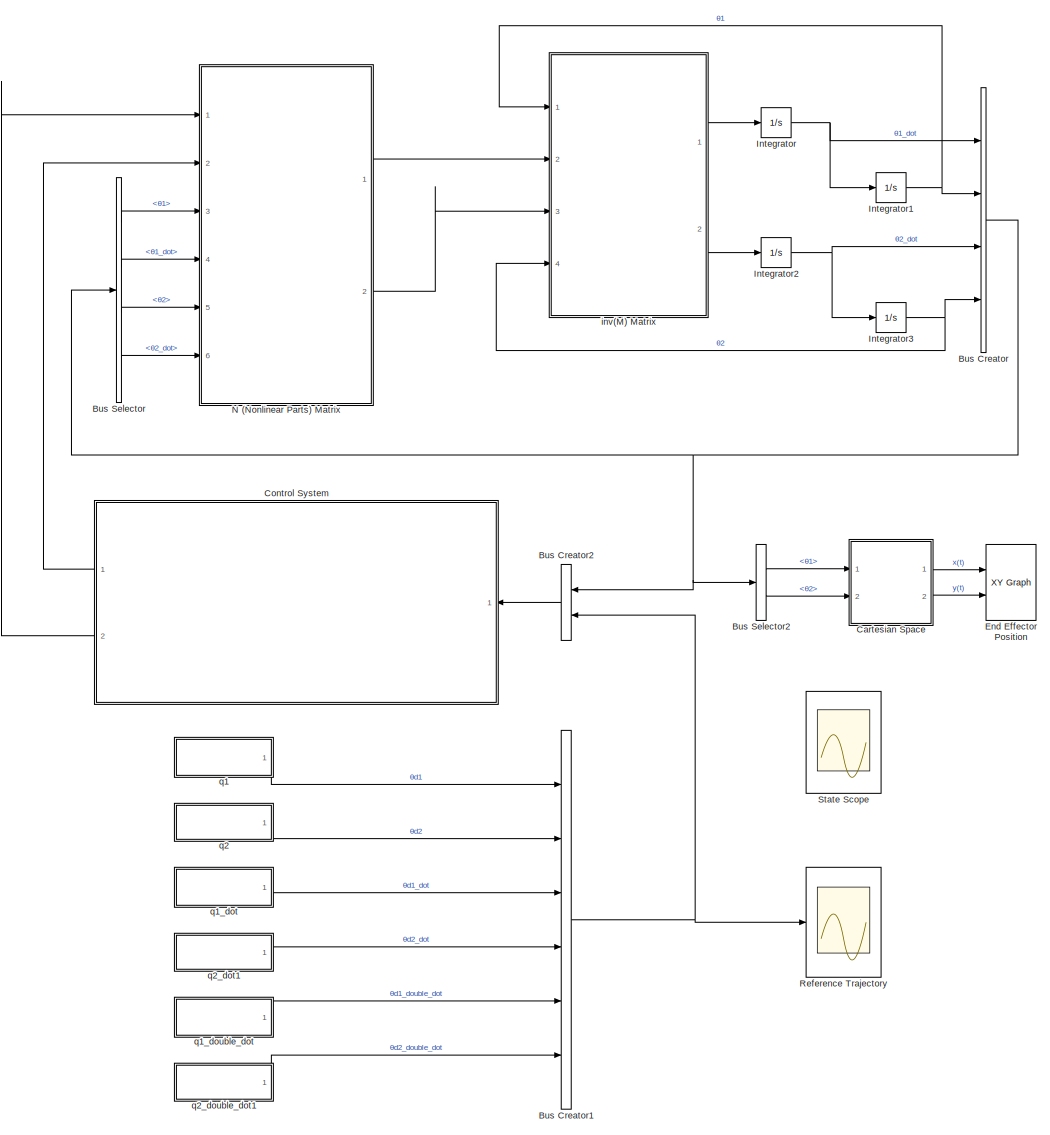
[diagram: root canvas - part 1/1, most of the canvas]
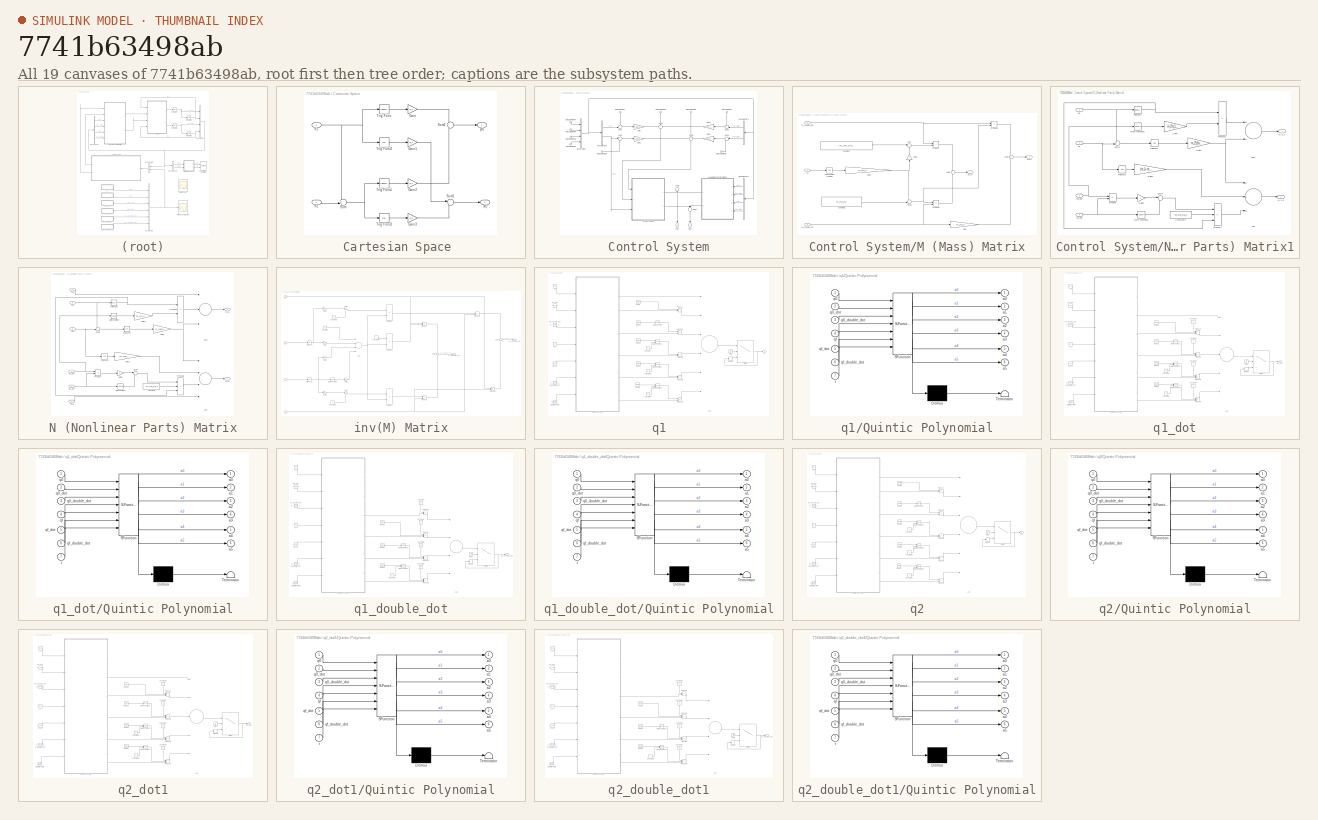
[diagram: thumbnail index - all 19 canvases of the model, root first then tree order]
MODEL slx_7741b63498ab
KIND model
CONFIG AbsTol = auto
CONFIG EnableMultiTasking = off
CONFIG FixedStep = 0.01
CONFIG MaxStep = auto
CONFIG MinStep = auto
CONFIG RelTol = 0.00001
CONFIG SampleTimeConstraint = Unconstrained
CONFIG Solver = FixedStepAuto
CONFIG SolverName = FixedStepAuto
CONFIG StartTime = 0.0
CONFIG StopTime = 10
WORKSPACE source: MAT-file member
WORKSPACE Kp_1 = 10000
WORKSPACE Kp_2 = 10000
WORKSPACE Kv_1 = 200
BLOCK [BusCreator] Bus Creator
  DisplayOption = bar
  InheritFromInputs = on
  Inputs = 4
  Ports = [4, 1]
BLOCK [BusCreator] Bus Creator1
  DisplayOption = bar
  InheritFromInputs = on
  Inputs = 6
  Ports = [6, 1]
BLOCK [BusCreator] Bus Creator2
  DisplayOption = bar
  InheritFromInputs = on
  Inputs = 2
  Ports = [2, 1]
BLOCK [BusSelector] Bus Selector
  OutputAsBus = off
  OutputSignals = θ1,θ1_dot,θ2,θ2_dot
  Ports = [1, 4]
BLOCK [BusSelector] Bus Selector2
  OutputAsBus = off
  OutputSignals = θ1,θ2
  Ports = [1, 2]
BLOCK [SubSystem] Cartesian Space 
  Ports = [2, 2]
  RequestExecContextInheritance = off
  TreatAsAtomicUnit = on
  Variant = off
BLOCK [Gain] Cartesian Space /Gain
  Gain = a_1
  OutDataTypeStr = Inherit: Inherit via internal rule
  ParamDataTypeStr = Inherit: Inherit via internal rule
  SaturateOnIntegerOverflow = off
BLOCK [Gain] Cartesian Space /Gain1
  Gain = a_1
  OutDataTypeStr = Inherit: Inherit via internal rule
  ParamDataTypeStr = Inherit: Inherit via internal rule
  SaturateOnIntegerOverflow = off
BLOCK [Gain] Cartesian Space /Gain2
  Gain = a_2
  OutDataTypeStr = Inherit: Inherit via internal rule
  ParamDataTypeStr = Inherit: Inherit via internal rule
  SaturateOnIntegerOverflow = off
BLOCK [Gain] Cartesian Space /Gain3
  Gain = a_2
  OutDataTypeStr = Inherit: Inherit via internal rule
  ParamDataTypeStr = Inherit: Inherit via internal rule
  SaturateOnIntegerOverflow = off
BLOCK [Sum] Cartesian Space /Sum
  IconShape = round
  InputSameDT = off
  Inputs = ++|
  OutDataTypeStr = Inherit: Inherit via internal rule
  Ports = [2, 1]
  SaturateOnIntegerOverflow = off
BLOCK [Sum] Cartesian Space /Sum1
  IconShape = round
  InputSameDT = off
  Inputs = |++
  OutDataTypeStr = Inherit: Inherit via internal rule
  Ports = [2, 1]
  SaturateOnIntegerOverflow = off
BLOCK [Sum] Cartesian Space /Sum2
  IconShape = round
  InputSameDT = off
  Inputs = +|+
  OutDataTypeStr = Inherit: Inherit via internal rule
  Ports = [2, 1]
  SaturateOnIntegerOverflow = off
BLOCK [Trigonometry] Cartesian Space /Trig Func
  Ports = [1, 1]
BLOCK [Trigonometry] Cartesian Space /Trig Func1
  Ports = [1, 1]
BLOCK [Trigonometry] Cartesian Space /Trig Func2
  Operator = cos
  Ports = [1, 1]
BLOCK [Trigonometry] Cartesian Space /Trig Func3
  Operator = cos
  Ports = [1, 1]
BLOCK [Outport] Cartesian Space /x(t)
  IconDisplay = Port number
BLOCK [Outport] Cartesian Space /y(t)
  IconDisplay = Port number
  Port = 2
BLOCK [Inport] Cartesian Space /θ1
  IconDisplay = Port number
BLOCK [Inport] Cartesian Space /θ2
  IconDisplay = Port number
  Port = 2
BLOCK [SubSystem] Control System
  Ports = [1, 2]
  RequestExecContextInheritance = off
  TreatAsAtomicUnit = on
  Variant = off
BLOCK [BusCreator] Control System/Bus Creator
  DisplayOption = bar
  InheritFromInputs = on
  Inputs = 4
  Ports = [4, 1]
BLOCK [BusSelector] Control System/Bus Selector3
  OutputAsBus = off
  OutputSignals = θ1,θ2
  Ports = [1, 2]
BLOCK [BusSelector] Control System/Bus Selector4
  OutputAsBus = off
  OutputSignals = θ1_dot,θ2_dot
  Ports = [1, 2]
BLOCK [BusSelector] Control System/Bus Selector5
  OutputAsBus = off
  OutputSignals = θ1,θ1_dot,θ2,θ2_dot
  Ports = [1, 4]
BLOCK [Gain] Control System/Gain
  Gain = Kp_1
  OutDataTypeStr = Inherit: Inherit via internal rule
  ParamDataTypeStr = Inherit: Inherit via internal rule
  SaturateOnIntegerOverflow = off
BLOCK [Gain] Control System/Gain1
  Gain = Kp_2
  OutDataTypeStr = Inherit: Inherit via internal rule
  ParamDataTypeStr = Inherit: Inherit via internal rule
  SaturateOnIntegerOverflow = off
BLOCK [Gain] Control System/Gain2
  Gain = Kv_1
  OutDataTypeStr = Inherit: Inherit via internal rule
  ParamDataTypeStr = Inherit: Inherit via internal rule
  SaturateOnIntegerOverflow = off
BLOCK [Gain] Control System/Gain3
  Gain = Kv_2
  OutDataTypeStr = Inherit: Inherit via internal rule
  ParamDataTypeStr = Inherit: Inherit via internal rule
  SaturateOnIntegerOverflow = off
BLOCK [Inport] Control System/In Bus Element
  IconDisplay = Port number
BLOCK [Inport] Control System/In Bus Element1
  IconDisplay = Port number
BLOCK [Inport] Control System/In Bus Element2
  IconDisplay = Port number
BLOCK [Inport] Control System/In Bus Element3
  IconDisplay = Port number
BLOCK [Inport] Control System/In Bus Element4
  IconDisplay = Port number
BLOCK [Inport] Control System/In Bus Element5
  IconDisplay = Port number
BLOCK [Inport] Control System/In Bus Element6
  IconDisplay = Port number
BLOCK [Inport] Control System/In Bus Element7
  IconDisplay = Port number
BLOCK [Inport] Control System/In Bus Element8
  IconDisplay = Port number
BLOCK [Inport] Control System/In Bus Element9
  IconDisplay = Port number
BLOCK [SubSystem] Control System/M (Mass) Matrix
  Ports = [3, 2]
  RequestExecContextInheritance = off
  TreatAsAtomicUnit = on
  Variant = off
BLOCK [Constant] Control System/M (Mass) Matrix/Constant
  Value = (m_1+m_2)*a_1^2+m_2*a_2^2
BLOCK [Constant] Control System/M (Mass) Matrix/Constant1
  Value = m_2*a_2^2
BLOCK [Gain] Control System/M (Mass) Matrix/Gain
  Gain = m_2*a_2^2
  OutDataTypeStr = Inherit: Inherit via internal rule
  ParamDataTypeStr = Inherit: Inherit via internal rule
  SaturateOnIntegerOverflow = off
BLOCK [Gain] Control System/M (Mass) Matrix/Gain1
  Gain = m_2*a_1*a_2
  OutDataTypeStr = Inherit: Inherit via internal rule
  ParamDataTypeStr = Inherit: Inherit via internal rule
  SaturateOnIntegerOverflow = off
BLOCK [Gain] Control System/M (Mass) Matrix/Gain2
  Gain = 2
  OutDataTypeStr = Inherit: Inherit via internal rule
  ParamDataTypeStr = Inherit: Inherit via internal rule
  SaturateOnIntegerOverflow = off
BLOCK [Outport] Control System/M (Mass) Matrix/M(1,1)
  IconDisplay = Port number
BLOCK [Outport] Control System/M (Mass) Matrix/M(2,1)
  IconDisplay = Port number
  Port = 2
BLOCK [Product] Control System/M (Mass) Matrix/Product
  InputSameDT = off
  OutDataTypeStr = Inherit: Inherit via internal rule
  Ports = [2, 1]
  RndMeth = Floor
  SaturateOnIntegerOverflow = off
BLOCK [Product] Control System/M (Mass) Matrix/Product1
  InputSameDT = off
  OutDataTypeStr = Inherit: Inherit via internal rule
  Ports = [2, 1]
  RndMeth = Floor
  SaturateOnIntegerOverflow = off
BLOCK [Product] Control System/M (Mass) Matrix/Product2
  InputSameDT = off
  OutDataTypeStr = Inherit: Inherit via internal rule
  Ports = [2, 1]
  RndMeth = Floor
  SaturateOnIntegerOverflow = off
BLOCK [Sum] Control System/M (Mass) Matrix/Sum
  IconShape = round
  InputSameDT = off
  Inputs = |++
  OutDataTypeStr = Inherit: Inherit via internal rule
  Ports = [2, 1]
  SaturateOnIntegerOverflow = off
BLOCK [Sum] Control System/M (Mass) Matrix/Sum1
  IconShape = round
  InputSameDT = off
  Inputs = ++|
  OutDataTypeStr = Inherit: Inherit via internal rule
  Ports = [2, 1]
  SaturateOnIntegerOverflow = off
BLOCK [Sum] Control System/M (Mass) Matrix/Sum2
  IconShape = round
  InputSameDT = off
  Inputs = +|+
  OutDataTypeStr = Inherit: Inherit via internal rule
  Ports = [2, 1]
  SaturateOnIntegerOverflow = off
BLOCK [Sum] Control System/M (Mass) Matrix/Sum3
  IconShape = round
  InputSameDT = off
  Inputs = +|+
  OutDataTypeStr = Inherit: Inherit via internal rule
  Ports = [2, 1]
  SaturateOnIntegerOverflow = off
BLOCK [Trigonometry] Control System/M (Mass) Matrix/Trigonometric Function
  Operator = cos
  Ports = [1, 1]
BLOCK [Inport] Control System/M (Mass) Matrix/θ1_double_dot
  IconDisplay = Port number
  Port = 2
BLOCK [Inport] Control System/M (Mass) Matrix/θ2
  IconDisplay = Port number
  Port = 3
BLOCK [Inport] Control System/M (Mass) Matrix/θ2_double_dot
  IconDisplay = Port number
BLOCK [SubSystem] Control System/N (Nonlinear Parts) Matrix1
  Ports = [4, 2]
  RequestExecContextInheritance = off
  TreatAsAtomicUnit = on
  Variant = off
BLOCK [Sum] Control System/N (Nonlinear Parts) Matrix1/Add
  InputSameDT = off
  Inputs = +++
  OutDataTypeStr = Inherit: Inherit via internal rule
  Ports = [3, 1]
  SaturateOnIntegerOverflow = off
BLOCK [Sum] Control System/N (Nonlinear Parts) Matrix1/Add1
  InputSameDT = off
  OutDataTypeStr = Inherit: Inherit via internal rule
  Ports = [2, 1]
  SaturateOnIntegerOverflow = off
BLOCK [Constant] Control System/N (Nonlinear Parts) Matrix1/Constant2
  Value = -m_2*a_1*a_2
BLOCK [Gain] Control System/N (Nonlinear Parts) Matrix1/Gain1
  Gain = m_2*g*a_2
  OutDataTypeStr = Inherit: Inherit via internal rule
  ParamDataTypeStr = Inherit: Inherit via internal rule
  SaturateOnIntegerOverflow = off
BLOCK [Gain] Control System/N (Nonlinear Parts) Matrix1/Gain3
  Gain = (m_1+m_2)*g*a_1
  OutDataTypeStr = Inherit: Inherit via internal rule
  ParamDataTypeStr = Inherit: Inherit via internal rule
  SaturateOnIntegerOverflow = off
BLOCK [Gain] Control System/N (Nonlinear Parts) Matrix1/Gain4
  Gain = m_2*a_1*a_2
  OutDataTypeStr = Inherit: Inherit via internal rule
  ParamDataTypeStr = Inherit: Inherit via internal rule
  SaturateOnIntegerOverflow = off
BLOCK [Gain] Control System/N (Nonlinear Parts) Matrix1/Gain5
  Gain = 2
  OutDataTypeStr = Inherit: Inherit via internal rule
  ParamDataTypeStr = Inherit: Inherit via internal rule
  SaturateOnIntegerOverflow = off
BLOCK [Math] Control System/N (Nonlinear Parts) Matrix1/Math Function2
  Operator = square
  Ports = [1, 1]
BLOCK [Math] Control System/N (Nonlinear Parts) Matrix1/Math Function3
  Operator = square
  Ports = [1, 1]
BLOCK [Outport] Control System/N (Nonlinear Parts) Matrix1/N(1,1)
  IconDisplay = Port number
BLOCK [Outport] Control System/N (Nonlinear Parts) Matrix1/N(2,1)
  IconDisplay = Port number
  Port = 2
BLOCK [Product] Control System/N (Nonlinear Parts) Matrix1/Product
  InputSameDT = off
  OutDataTypeStr = Inherit: Inherit via internal rule
  Ports = [2, 1]
  RndMeth = Floor
  SaturateOnIntegerOverflow = off
BLOCK [Product] Control System/N (Nonlinear Parts) Matrix1/Product2
  InputSameDT = off
  Inputs = 3
  OutDataTypeStr = Inherit: Inherit via internal rule
  Ports = [3, 1]
  RndMeth = Floor
  SaturateOnIntegerOverflow = off
BLOCK [Product] Control System/N (Nonlinear Parts) Matrix1/Product5
  InputSameDT = off
  OutDataTypeStr = Inherit: Inherit via internal rule
  Ports = [2, 1]
  RndMeth = Floor
  SaturateOnIntegerOverflow = off
BLOCK [Sum] Control System/N (Nonlinear Parts) Matrix1/Sum1
  IconShape = round
  InputSameDT = off
  Inputs = ++|
  OutDataTypeStr = Inherit: Inherit via internal rule
  Ports = [2, 1]
  SaturateOnIntegerOverflow = off
BLOCK [Sum] Control System/N (Nonlinear Parts) Matrix1/Sum3
  IconShape = round
  InputSameDT = off
  Inputs = |++
  OutDataTypeStr = Inherit: Inherit via internal rule
  Ports = [2, 1]
  SaturateOnIntegerOverflow = off
BLOCK [Trigonometry] Control System/N (Nonlinear Parts) Matrix1/TrigFunc1
  Operator = cos
  Ports = [1, 1]
BLOCK [Trigonometry] Control System/N (Nonlinear Parts) Matrix1/TrigFunc3
  Operator = cos
  Ports = [1, 1]
BLOCK [Trigonometry] Control System/N (Nonlinear Parts) Matrix1/TrigFunc4
  Ports = [1, 1]
BLOCK [Inport] Control System/N (Nonlinear Parts) Matrix1/θ1 
  IconDisplay = Port number
BLOCK [Inport] Control System/N (Nonlinear Parts) Matrix1/θ1_dot
  IconDisplay = Port number
  Port = 2
BLOCK [Inport] Control System/N (Nonlinear Parts) Matrix1/θ2
  IconDisplay = Port number
  Port = 3
BLOCK [Inport] Control System/N (Nonlinear Parts) Matrix1/θ2_dot
  IconDisplay = Port number
  Port = 4
BLOCK [Sum] Control System/Sum
  IconShape = round
  InputSameDT = off
  Inputs = +-|
  OutDataTypeStr = Inherit: Inherit via internal rule
  Ports = [2, 1]
  SaturateOnIntegerOverflow = off
BLOCK [Sum] Control System/Sum1
  IconShape = round
  InputSameDT = off
  Inputs = |-+
  OutDataTypeStr = Inherit: Inherit via internal rule
  Ports = [2, 1]
  SaturateOnIntegerOverflow = off
BLOCK [Sum] Control System/Sum2
  IconShape = round
  InputSameDT = off
  Inputs = +-|
  OutDataTypeStr = Inherit: Inherit via internal rule
  Ports = [2, 1]
  SaturateOnIntegerOverflow = off
BLOCK [Sum] Control System/Sum3
  IconShape = round
  InputSameDT = off
  Inputs = |-+
  OutDataTypeStr = Inherit: Inherit via internal rule
  Ports = [2, 1]
  SaturateOnIntegerOverflow = off
BLOCK [Sum] Control System/Sum4
  IconShape = round
  InputSameDT = off
  Inputs = +++
  OutDataTypeStr = Inherit: Inherit via internal rule
  Ports = [3, 1]
  SaturateOnIntegerOverflow = off
BLOCK [Sum] Control System/Sum5
  IconShape = round
  InputSameDT = off
  Inputs = +++
  OutDataTypeStr = Inherit: Inherit via internal rule
  Ports = [3, 1]
  SaturateOnIntegerOverflow = off
BLOCK [Sum] Control System/Sum6
  IconShape = round
  InputSameDT = off
  Inputs = +|+
  OutDataTypeStr = Inherit: Inherit via internal rule
  Ports = [2, 1]
  SaturateOnIntegerOverflow = off
BLOCK [Sum] Control System/Sum7
  IconShape = round
  InputSameDT = off
  Inputs = +|+
  OutDataTypeStr = Inherit: Inherit via internal rule
  Ports = [2, 1]
  SaturateOnIntegerOverflow = off
BLOCK [Outport] Control System/Tau1
  IconDisplay = Port number
BLOCK [Outport] Control System/Tau2
  IconDisplay = Port number
  Port = 2
BLOCK [Reference] End Effector Position  REF=simulink/Sinks/XY Graph
  Ports = [2]
  SourceBlock = simulink/Sinks/XY Graph
  SourceProductBaseCode = SL
  SourceProductName = Simulink
  SourceType = XY scope.
BLOCK [Integrator] Integrator
  Ports = [1, 1]
BLOCK [Integrator] Integrator1
  Ports = [1, 1]
BLOCK [Integrator] Integrator2
  Ports = [1, 1]
BLOCK [Integrator] Integrator3
  Ports = [1, 1]
BLOCK [SubSystem] N (Nonlinear Parts) Matrix
  Ports = [6, 2]
  RequestExecContextInheritance = off
  TreatAsAtomicUnit = on
  Variant = off
BLOCK [Sum] N (Nonlinear Parts) Matrix/Add
  InputSameDT = off
  Inputs = ---+
  OutDataTypeStr = Inherit: Inherit via internal rule
  Ports = [4, 1]
  SaturateOnIntegerOverflow = off
BLOCK [Sum] N (Nonlinear Parts) Matrix/Add1
  InputSameDT = off
  Inputs = +--
  OutDataTypeStr = Inherit: Inherit via internal rule
  Ports = [3, 1]
  SaturateOnIntegerOverflow = off
BLOCK [Constant] N (Nonlinear Parts) Matrix/Constant2
  Value = -m_2*a_1*a_2
BLOCK [Gain] N (Nonlinear Parts) Matrix/Gain1
  Gain = m_2*g*a_2
  OutDataTypeStr = Inherit: Inherit via internal rule
  ParamDataTypeStr = Inherit: Inherit via internal rule
  SaturateOnIntegerOverflow = off
BLOCK [Gain] N (Nonlinear Parts) Matrix/Gain3
  Gain = (m_1+m_2)*g*a_1
  OutDataTypeStr = Inherit: Inherit via internal rule
  ParamDataTypeStr = Inherit: Inherit via internal rule
  SaturateOnIntegerOverflow = off
BLOCK [Gain] N (Nonlinear Parts) Matrix/Gain4
  Gain = m_2*a_1*a_2
  OutDataTypeStr = Inherit: Inherit via internal rule
  ParamDataTypeStr = Inherit: Inherit via internal rule
  SaturateOnIntegerOverflow = off
BLOCK [Gain] N (Nonlinear Parts) Matrix/Gain5
  Gain = 2
  OutDataTypeStr = Inherit: Inherit via internal rule
  ParamDataTypeStr = Inherit: Inherit via internal rule
  SaturateOnIntegerOverflow = off
BLOCK [Math] N (Nonlinear Parts) Matrix/Math Function2
  Operator = square
  Ports = [1, 1]
BLOCK [Math] N (Nonlinear Parts) Matrix/Math Function3
  Operator = square
  Ports = [1, 1]
BLOCK [Outport] N (Nonlinear Parts) Matrix/N(1,1)
  IconDisplay = Port number
BLOCK [Outport] N (Nonlinear Parts) Matrix/N(2,1)
  IconDisplay = Port number
  Port = 2
BLOCK [Product] N (Nonlinear Parts) Matrix/Product
  InputSameDT = off
  OutDataTypeStr = Inherit: Inherit via internal rule
  Ports = [2, 1]
  RndMeth = Floor
  SaturateOnIntegerOverflow = off
BLOCK [Product] N (Nonlinear Parts) Matrix/Product2
  InputSameDT = off
  Inputs = 3
  OutDataTypeStr = Inherit: Inherit via internal rule
  Ports = [3, 1]
  RndMeth = Floor
  SaturateOnIntegerOverflow = off
BLOCK [Product] N (Nonlinear Parts) Matrix/Product5
  InputSameDT = off
  OutDataTypeStr = Inherit: Inherit via internal rule
  Ports = [2, 1]
  RndMeth = Floor
  SaturateOnIntegerOverflow = off
BLOCK [Sum] N (Nonlinear Parts) Matrix/Sum1
  IconShape = round
  InputSameDT = off
  Inputs = ++|
  OutDataTypeStr = Inherit: Inherit via internal rule
  Ports = [2, 1]
  SaturateOnIntegerOverflow = off
BLOCK [Sum] N (Nonlinear Parts) Matrix/Sum3
  IconShape = round
  InputSameDT = off
  Inputs = |++
  OutDataTypeStr = Inherit: Inherit via internal rule
  Ports = [2, 1]
  SaturateOnIntegerOverflow = off
BLOCK [Inport] N (Nonlinear Parts) Matrix/Tau1
  IconDisplay = Port number
  Port = 2
BLOCK [Inport] N (Nonlinear Parts) Matrix/Tau2
  IconDisplay = Port number
BLOCK [Trigonometry] N (Nonlinear Parts) Matrix/TrigFunc1
  Operator = cos
  Ports = [1, 1]
BLOCK [Trigonometry] N (Nonlinear Parts) Matrix/TrigFunc3
  Operator = cos
  Ports = [1, 1]
BLOCK [Trigonometry] N (Nonlinear Parts) Matrix/TrigFunc4
  Ports = [1, 1]
BLOCK [Inport] N (Nonlinear Parts) Matrix/θ1 
  IconDisplay = Port number
  Port = 3
BLOCK [Inport] N (Nonlinear Parts) Matrix/θ1_dot
  IconDisplay = Port number
  Port = 4
BLOCK [Inport] N (Nonlinear Parts) Matrix/θ2
  IconDisplay = Port number
  Port = 5
BLOCK [Inport] N (Nonlinear Parts) Matrix/θ2_dot
  IconDisplay = Port number
  Port = 6
BLOCK [Scope] Reference Trajectory
  NumInputPorts = 1
  Ports = [1]
  ScopeSpecificationString = Simulink.scopes.TimeScopeBlockCfg('CurrentConfiguration', extmgr.ConfigurationSet(extmgr.Configuration('Core','General UI',true),extmgr.Configuration('Core','Source UI',true),extmgr.Configuration('Sources','WiredSimulink',true,'DataLoggingVariableName','ScopeData2'),extmgr.Configuration('Visuals','Time Domain',true,'SerializedDisplays',{struct('MinYLimReal','-1.112','MaxYLimReal','2.45066','YLabel...<+1449ch>
BLOCK [Scope] State Scope
  Floating = on
  NumInputPorts = 1
  Ports = []
  ScopeSpecificationString = Simulink.scopes.TimeScopeBlockCfg('CurrentConfiguration', extmgr.ConfigurationSet(extmgr.Configuration('Core','General UI',true),extmgr.Configuration('Core','Source UI',true),extmgr.Configuration('Sources','WiredSimulink',true,'DataLoggingVariableName','ScopeData1'),extmgr.Configuration('Visuals','Time Domain',true,'SerializedDisplays',{struct('MinYLimReal','-1.24796','MaxYLimReal','2.46577','YLab...<+1442ch>
BLOCK [SubSystem] inv(M) Matrix
  Ports = [4, 2]
  RequestExecContextInheritance = off
  TreatAsAtomicUnit = on
  Variant = off
BLOCK [Inport] inv(M) Matrix/1st
  IconDisplay = Port number
  Port = 2
BLOCK [Inport] inv(M) Matrix/2nd
  IconDisplay = Port number
  Port = 3
BLOCK [Sum] inv(M) Matrix/Add
  InputSameDT = off
  Inputs = 4
  OutDataTypeStr = Inherit: Inherit via internal rule
  Ports = [4, 1]
  SaturateOnIntegerOverflow = off
BLOCK [Constant] inv(M) Matrix/Constant
  Value = 2
BLOCK [Constant] inv(M) Matrix/Constant1
BLOCK [Constant] inv(M) Matrix/Constant2
  Value = -1
BLOCK [Constant] inv(M) Matrix/Constant3
  Value = 3
BLOCK [Product] inv(M) Matrix/Divide1
  InputSameDT = off
  Inputs = */
  OutDataTypeStr = Inherit: Inherit via internal rule
  Ports = [2, 1]
  RndMeth = Floor
  SaturateOnIntegerOverflow = off
BLOCK [Product] inv(M) Matrix/Divide2
  InputSameDT = off
  Inputs = */
  OutDataTypeStr = Inherit: Inherit via internal rule
  Ports = [2, 1]
  RndMeth = Floor
  SaturateOnIntegerOverflow = off
BLOCK [Product] inv(M) Matrix/Divide3
  InputSameDT = off
  Inputs = */
  OutDataTypeStr = Inherit: Inherit via internal rule
  Ports = [2, 1]
  RndMeth = Floor
  SaturateOnIntegerOverflow = off
BLOCK [Gain] inv(M) Matrix/Gain
  Gain = 2
  OutDataTypeStr = Inherit: Inherit via internal rule
  ParamDataTypeStr = Inherit: Inherit via internal rule
  SaturateOnIntegerOverflow = off
BLOCK [Gain] inv(M) Matrix/Gain1
  Gain = -2
  OutDataTypeStr = Inherit: Inherit via internal rule
  ParamDataTypeStr = Inherit: Inherit via internal rule
  SaturateOnIntegerOverflow = off
BLOCK [Gain] inv(M) Matrix/Gain2
  Gain = -1
  OutDataTypeStr = Inherit: Inherit via internal rule
  ParamDataTypeStr = Inherit: Inherit via internal rule
  SaturateOnIntegerOverflow = off
BLOCK [Gain] inv(M) Matrix/Gain3
  Gain = -1
  OutDataTypeStr = Inherit: Inherit via internal rule
  ParamDataTypeStr = Inherit: Inherit via internal rule
  SaturateOnIntegerOverflow = off
BLOCK [Gain] inv(M) Matrix/Gain4
  Gain = 2
  OutDataTypeStr = Inherit: Inherit via internal rule
  ParamDataTypeStr = Inherit: Inherit via internal rule
  SaturateOnIntegerOverflow = off
BLOCK [Math] inv(M) Matrix/Math Function
  Operator = square
  Ports = [1, 1]
BLOCK [Product] inv(M) Matrix/Product
  InputSameDT = off
  OutDataTypeStr = Inherit: Inherit via internal rule
  Ports = [2, 1]
  RndMeth = Floor
  SaturateOnIntegerOverflow = off
BLOCK [Product] inv(M) Matrix/Product1
  InputSameDT = off
  OutDataTypeStr = Inherit: Inherit via internal rule
  Ports = [2, 1]
  RndMeth = Floor
  SaturateOnIntegerOverflow = off
BLOCK [Product] inv(M) Matrix/Product2
  InputSameDT = off
  OutDataTypeStr = Inherit: Inherit via internal rule
  Ports = [2, 1]
  RndMeth = Floor
  SaturateOnIntegerOverflow = off
BLOCK [Product] inv(M) Matrix/Product3
  InputSameDT = off
  OutDataTypeStr = Inherit: Inherit via internal rule
  Ports = [2, 1]
  RndMeth = Floor
  SaturateOnIntegerOverflow = off
BLOCK [Sum] inv(M) Matrix/Sum
  IconShape = round
  InputSameDT = off
  Inputs = |++
  OutDataTypeStr = Inherit: Inherit via internal rule
  Ports = [2, 1]
  SaturateOnIntegerOverflow = off
BLOCK [Sum] inv(M) Matrix/Sum1
  IconShape = round
  InputSameDT = off
  Inputs = |++
  OutDataTypeStr = Inherit: Inherit via internal rule
  Ports = [2, 1]
  SaturateOnIntegerOverflow = off
BLOCK [Sum] inv(M) Matrix/Sum2
  IconShape = round
  InputSameDT = off
  Inputs = +|+
  OutDataTypeStr = Inherit: Inherit via internal rule
  Ports = [2, 1]
  SaturateOnIntegerOverflow = off
BLOCK [Sum] inv(M) Matrix/Sum3
  IconShape = round
  InputSameDT = off
  Inputs = +|+
  OutDataTypeStr = Inherit: Inherit via internal rule
  Ports = [2, 1]
  SaturateOnIntegerOverflow = off
BLOCK [Trigonometry] inv(M) Matrix/Trig Func
  Operator = cos
  Ports = [1, 1]
BLOCK [Trigonometry] inv(M) Matrix/Trig Func1
  Operator = cos
  Ports = [1, 1]
BLOCK [Inport] inv(M) Matrix/θ1
  IconDisplay = Port number
BLOCK [Outport] inv(M) Matrix/θ1_double_dot
  IconDisplay = Port number
BLOCK [Inport] inv(M) Matrix/θ2
  IconDisplay = Port number
  Port = 4
BLOCK [Outport] inv(M) Matrix/θ2_double_dot
  IconDisplay = Port number
  Port = 2
BLOCK [SubSystem] q1
  Ports = [0, 1]
  RequestExecContextInheritance = off
  TreatAsAtomicUnit = on
  Variant = off
BLOCK [Sum] q1/Add
  InputSameDT = off
  Inputs = 6
  OutDataTypeStr = Inherit: Inherit via internal rule
  Ports = [6, 1]
  SaturateOnIntegerOverflow = off
BLOCK [Constant] q1/Constant
  Value = 3
BLOCK [Constant] q1/Constant1
  Value = 4
BLOCK [Constant] q1/Constant2
  Value = 5
BLOCK [Math] q1/Math Function
  Operator = square
  Ports = [1, 1]
BLOCK [Math] q1/Math Function1
  Operator = pow
  Ports = [2, 1]
BLOCK [Math] q1/Math Function2
  Operator = pow
  Ports = [2, 1]
BLOCK [Math] q1/Math Function3
  Operator = pow
  Ports = [2, 1]
BLOCK [Memory] q1/Memory
BLOCK [Product] q1/Product
  InputSameDT = off
  OutDataTypeStr = Inherit: Inherit via internal rule
  Ports = [2, 1]
  RndMeth = Floor
  SaturateOnIntegerOverflow = off
BLOCK [Product] q1/Product1
  InputSameDT = off
  OutDataTypeStr = Inherit: Inherit via internal rule
  Ports = [2, 1]
  RndMeth = Floor
  SaturateOnIntegerOverflow = off
BLOCK [Product] q1/Product2
  InputSameDT = off
  OutDataTypeStr = Inherit: Inherit via internal rule
  Ports = [2, 1]
  RndMeth = Floor
  SaturateOnIntegerOverflow = off
BLOCK [Product] q1/Product3
  InputSameDT = off
  OutDataTypeStr = Inherit: Inherit via internal rule
  Ports = [2, 1]
  RndMeth = Floor
  SaturateOnIntegerOverflow = off
BLOCK [Product] q1/Product4
  InputSameDT = off
  OutDataTypeStr = Inherit: Inherit via internal rule
  Ports = [2, 1]
  RndMeth = Floor
  SaturateOnIntegerOverflow = off
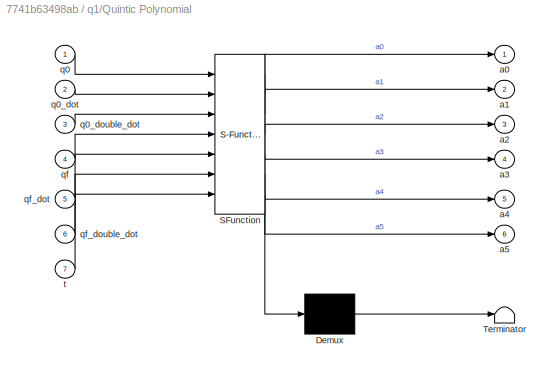
BLOCK [SubSystem] q1/Quintic Polynomial
  ErrorFcn = Stateflow.Translate.translate
  PermitHierarchicalResolution = ExplicitOnly
  Ports = [7, 6]
  RequestExecContextInheritance = off
  SFBlockType = MATLAB Function
  TreatAsAtomicUnit = on
  Variant = off
BLOCK [Demux] q1/Quintic Polynomial/ Demux 
  Outputs = 1
  Ports = [1, 1]
BLOCK [S-Function] q1/Quintic Polynomial/ SFunction 
  EnableBusSupport = on
  FunctionName = sf_sfun
  PortCounts = [7 7]
  Ports = [7, 7]
  SFcnIsStateOwnerBlock = off
  SFunctionDeploymentMode = off
  Tag = Stateflow S-Function Q6_b 1
BLOCK [Terminator] q1/Quintic Polynomial/ Terminator 
BLOCK [Outport] q1/Quintic Polynomial/a0
  IconDisplay = Port number
BLOCK [Outport] q1/Quintic Polynomial/a1
  IconDisplay = Port number
  Port = 2
BLOCK [Outport] q1/Quintic Polynomial/a2
  IconDisplay = Port number
  Port = 3
BLOCK [Outport] q1/Quintic Polynomial/a3
  IconDisplay = Port number
  Port = 4
BLOCK [Outport] q1/Quintic Polynomial/a4
  IconDisplay = Port number
  Port = 5
BLOCK [Outport] q1/Quintic Polynomial/a5
  IconDisplay = Port number
  Port = 6
BLOCK [Inport] q1/Quintic Polynomial/q0
  IconDisplay = Port number
BLOCK [Inport] q1/Quintic Polynomial/q0_dot
  IconDisplay = Port number
  Port = 2
BLOCK [Inport] q1/Quintic Polynomial/q0_double_dot
  IconDisplay = Port number
  Port = 3
BLOCK [Inport] q1/Quintic Polynomial/qf
  IconDisplay = Port number
  Port = 4
BLOCK [Inport] q1/Quintic Polynomial/qf_dot
  IconDisplay = Port number
  Port = 5
BLOCK [Inport] q1/Quintic Polynomial/qf_double_dot
  IconDisplay = Port number
  Port = 6
BLOCK [Inport] q1/Quintic Polynomial/t
  IconDisplay = Port number
  Port = 7
BLOCK [Reference] q1/Ramp  REF=simulink/Sources/Ramp
  Ports = [0, 1]
  SourceBlock = simulink/Sources/Ramp
  SourceProductBaseCode = SL
  SourceProductName = Simulink
  SourceType = Ramp
BLOCK [Reference] q1/Ramp1  REF=simulink/Sources/Ramp
  Ports = [0, 1]
  SourceBlock = simulink/Sources/Ramp
  SourceProductBaseCode = SL
  SourceProductName = Simulink
  SourceType = Ramp
BLOCK [Reference] q1/Ramp2  REF=simulink/Sources/Ramp
  Ports = [0, 1]
  SourceBlock = simulink/Sources/Ramp
  SourceProductBaseCode = SL
  SourceProductName = Simulink
  SourceType = Ramp
BLOCK [Reference] q1/Ramp3  REF=simulink/Sources/Ramp
  Ports = [0, 1]
  SourceBlock = simulink/Sources/Ramp
  SourceProductBaseCode = SL
  SourceProductName = Simulink
  SourceType = Ramp
BLOCK [Reference] q1/Ramp4  REF=simulink/Sources/Ramp
  Ports = [0, 1]
  SourceBlock = simulink/Sources/Ramp
  SourceProductBaseCode = SL
  SourceProductName = Simulink
  SourceType = Ramp
BLOCK [Constant] q1/Simulation Time
  Value = simulation_time
BLOCK [Step] q1/Step
  After = 0
  Before = 1
  SampleTime = 0
  Time = simulation_time
BLOCK [Switch] q1/Switch
  Criteria = u2 > Threshold
  InputSameDT = off
  SaturateOnIntegerOverflow = off
  Threshold = 0.5
BLOCK [Constant] q1/q0
  Value = q1_0
BLOCK [Constant] q1/q0_dot
  Value = q1_dot_0
BLOCK [Constant] q1/q0_double_dot
  Value = q1_double_dot_0
BLOCK [Outport] q1/q1
  IconDisplay = Port number
BLOCK [Constant] q1/qf
  Value = q1_f
BLOCK [Constant] q1/qf_dot
  Value = q1_dot_f
BLOCK [Constant] q1/qf_double_dot
  Value = q1_double_dot_f
BLOCK [SubSystem] q1_dot
  Ports = [0, 1]
  RequestExecContextInheritance = off
  TreatAsAtomicUnit = on
  Variant = off
BLOCK [Sum] q1_dot/Add
  InputSameDT = off
  Inputs = 5
  OutDataTypeStr = Inherit: Inherit via internal rule
  Ports = [5, 1]
  SaturateOnIntegerOverflow = off
BLOCK [Constant] q1_dot/Constant1
  Value = 3
BLOCK [Constant] q1_dot/Constant2
  Value = 4
BLOCK [Constant] q1_dot/Constant3
  Value = 2
BLOCK [Constant] q1_dot/Constant4
  Value = 3
BLOCK [Constant] q1_dot/Constant5
  Value = 4
BLOCK [Constant] q1_dot/Constant6
  Value = 5
BLOCK [Math] q1_dot/Math Function1
  Operator = square
  Ports = [1, 1]
BLOCK [Math] q1_dot/Math Function2
  Operator = pow
  Ports = [2, 1]
BLOCK [Math] q1_dot/Math Function3
  Operator = pow
  Ports = [2, 1]
BLOCK [Memory] q1_dot/Memory
BLOCK [Product] q1_dot/Product1
  InputSameDT = off
  Inputs = 3
  OutDataTypeStr = Inherit: Inherit via internal rule
  Ports = [3, 1]
  RndMeth = Floor
  SaturateOnIntegerOverflow = off
BLOCK [Product] q1_dot/Product2
  InputSameDT = off
  Inputs = 3
  OutDataTypeStr = Inherit: Inherit via internal rule
  Ports = [3, 1]
  RndMeth = Floor
  SaturateOnIntegerOverflow = off
BLOCK [Product] q1_dot/Product3
  InputSameDT = off
  Inputs = 3
  OutDataTypeStr = Inherit: Inherit via internal rule
  Ports = [3, 1]
  RndMeth = Floor
  SaturateOnIntegerOverflow = off
BLOCK [Product] q1_dot/Product4
  InputSameDT = off
  Inputs = 3
  OutDataTypeStr = Inherit: Inherit via internal rule
  Ports = [3, 1]
  RndMeth = Floor
  SaturateOnIntegerOverflow = off
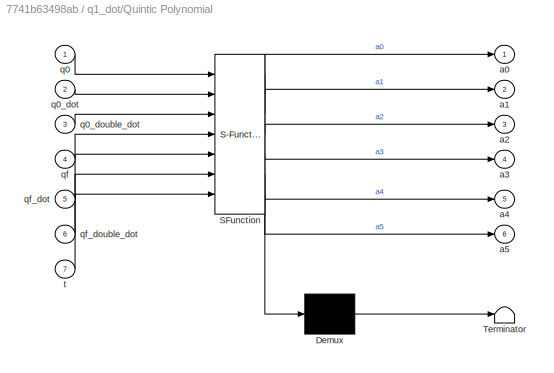
BLOCK [SubSystem] q1_dot/Quintic Polynomial
  ErrorFcn = Stateflow.Translate.translate
  PermitHierarchicalResolution = ExplicitOnly
  Ports = [7, 6]
  RequestExecContextInheritance = off
  SFBlockType = MATLAB Function
  TreatAsAtomicUnit = on
  Variant = off
BLOCK [Demux] q1_dot/Quintic Polynomial/ Demux 
  Outputs = 1
  Ports = [1, 1]
BLOCK [S-Function] q1_dot/Quintic Polynomial/ SFunction 
  EnableBusSupport = on
  FunctionName = sf_sfun
  PortCounts = [7 7]
  Ports = [7, 7]
  SFcnIsStateOwnerBlock = off
  SFunctionDeploymentMode = off
  Tag = Stateflow S-Function Q6_b 3
BLOCK [Terminator] q1_dot/Quintic Polynomial/ Terminator 
BLOCK [Outport] q1_dot/Quintic Polynomial/a0
  IconDisplay = Port number
BLOCK [Outport] q1_dot/Quintic Polynomial/a1
  IconDisplay = Port number
  Port = 2
BLOCK [Outport] q1_dot/Quintic Polynomial/a2
  IconDisplay = Port number
  Port = 3
BLOCK [Outport] q1_dot/Quintic Polynomial/a3
  IconDisplay = Port number
  Port = 4
BLOCK [Outport] q1_dot/Quintic Polynomial/a4
  IconDisplay = Port number
  Port = 5
BLOCK [Outport] q1_dot/Quintic Polynomial/a5
  IconDisplay = Port number
  Port = 6
BLOCK [Inport] q1_dot/Quintic Polynomial/q0
  IconDisplay = Port number
BLOCK [Inport] q1_dot/Quintic Polynomial/q0_dot
  IconDisplay = Port number
  Port = 2
BLOCK [Inport] q1_dot/Quintic Polynomial/q0_double_dot
  IconDisplay = Port number
  Port = 3
BLOCK [Inport] q1_dot/Quintic Polynomial/qf
  IconDisplay = Port number
  Port = 4
BLOCK [Inport] q1_dot/Quintic Polynomial/qf_dot
  IconDisplay = Port number
  Port = 5
BLOCK [Inport] q1_dot/Quintic Polynomial/qf_double_dot
  IconDisplay = Port number
  Port = 6
BLOCK [Inport] q1_dot/Quintic Polynomial/t
  IconDisplay = Port number
  Port = 7
BLOCK [Reference] q1_dot/Ramp1  REF=simulink/Sources/Ramp
  Ports = [0, 1]
  SourceBlock = simulink/Sources/Ramp
  SourceProductBaseCode = SL
  SourceProductName = Simulink
  SourceType = Ramp
BLOCK [Reference] q1_dot/Ramp2  REF=simulink/Sources/Ramp
  Ports = [0, 1]
  SourceBlock = simulink/Sources/Ramp
  SourceProductBaseCode = SL
  SourceProductName = Simulink
  SourceType = Ramp
BLOCK [Reference] q1_dot/Ramp3  REF=simulink/Sources/Ramp
  Ports = [0, 1]
  SourceBlock = simulink/Sources/Ramp
  SourceProductBaseCode = SL
  SourceProductName = Simulink
  SourceType = Ramp
BLOCK [Reference] q1_dot/Ramp4  REF=simulink/Sources/Ramp
  Ports = [0, 1]
  SourceBlock = simulink/Sources/Ramp
  SourceProductBaseCode = SL
  SourceProductName = Simulink
  SourceType = Ramp
BLOCK [Constant] q1_dot/Simulation Time
  Value = simulation_time
BLOCK [Step] q1_dot/Step
  After = 0
  Before = 1
  SampleTime = 0
  Time = simulation_time
BLOCK [Switch] q1_dot/Switch
  Criteria = u2 > Threshold
  InputSameDT = off
  SaturateOnIntegerOverflow = off
  Threshold = 0.5
BLOCK [Constant] q1_dot/q0
  Value = q1_0
BLOCK [Constant] q1_dot/q0_dot
  Value = q1_dot_0
BLOCK [Constant] q1_dot/q0_double_dot
  Value = q1_double_dot_0
BLOCK [Outport] q1_dot/q1_dot
  IconDisplay = Port number
BLOCK [Constant] q1_dot/qf
  Value = q1_f
BLOCK [Constant] q1_dot/qf_dot
  Value = q1_dot_f
BLOCK [Constant] q1_dot/qf_double_dot
  Value = q1_double_dot_f
BLOCK [SubSystem] q1_double_dot
  Ports = [0, 1]
  RequestExecContextInheritance = off
  TreatAsAtomicUnit = on
  Variant = off
BLOCK [Sum] q1_double_dot/Add
  InputSameDT = off
  Inputs = 4
  OutDataTypeStr = Inherit: Inherit via internal rule
  Ports = [4, 1]
  SaturateOnIntegerOverflow = off
BLOCK [Constant] q1_double_dot/Constant2
  Value = 3
BLOCK [Constant] q1_double_dot/Constant3
  Value = 2
BLOCK [Constant] q1_double_dot/Constant4
  Value = 6
BLOCK [Constant] q1_double_dot/Constant5
  Value = 12
BLOCK [Constant] q1_double_dot/Constant6
  Value = 20
BLOCK [Math] q1_double_dot/Math Function2
  Operator = square
  Ports = [1, 1]
BLOCK [Math] q1_double_dot/Math Function3
  Operator = pow
  Ports = [2, 1]
BLOCK [Memory] q1_double_dot/Memory
BLOCK [Product] q1_double_dot/Product1
  InputSameDT = off
  OutDataTypeStr = Inherit: Inherit via internal rule
  Ports = [2, 1]
  RndMeth = Floor
  SaturateOnIntegerOverflow = off
BLOCK [Product] q1_double_dot/Product2
  InputSameDT = off
  Inputs = 3
  OutDataTypeStr = Inherit: Inherit via internal rule
  Ports = [3, 1]
  RndMeth = Floor
  SaturateOnIntegerOverflow = off
BLOCK [Product] q1_double_dot/Product3
  InputSameDT = off
  Inputs = 3
  OutDataTypeStr = Inherit: Inherit via internal rule
  Ports = [3, 1]
  RndMeth = Floor
  SaturateOnIntegerOverflow = off
BLOCK [Product] q1_double_dot/Product4
  InputSameDT = off
  Inputs = 3
  OutDataTypeStr = Inherit: Inherit via internal rule
  Ports = [3, 1]
  RndMeth = Floor
  SaturateOnIntegerOverflow = off
BLOCK [SubSystem] q1_double_dot/Quintic Polynomial
  ErrorFcn = Stateflow.Translate.translate
  PermitHierarchicalResolution = ExplicitOnly
  Ports = [7, 6]
  RequestExecContextInheritance = off
  SFBlockType = MATLAB Function
  TreatAsAtomicUnit = on
  Variant = off
BLOCK [Demux] q1_double_dot/Quintic Polynomial/ Demux 
  Outputs = 1
  Ports = [1, 1]
BLOCK [S-Function] q1_double_dot/Quintic Polynomial/ SFunction 
  EnableBusSupport = on
  FunctionName = sf_sfun
  PortCounts = [7 7]
  Ports = [7, 7]
  SFcnIsStateOwnerBlock = off
  SFunctionDeploymentMode = off
  Tag = Stateflow S-Function Q6_b 5
BLOCK [Terminator] q1_double_dot/Quintic Polynomial/ Terminator 
BLOCK [Outport] q1_double_dot/Quintic Polynomial/a0
  IconDisplay = Port number
BLOCK [Outport] q1_double_dot/Quintic Polynomial/a1
  IconDisplay = Port number
  Port = 2
BLOCK [Outport] q1_double_dot/Quintic Polynomial/a2
  IconDisplay = Port number
  Port = 3
BLOCK [Outport] q1_double_dot/Quintic Polynomial/a3
  IconDisplay = Port number
  Port = 4
BLOCK [Outport] q1_double_dot/Quintic Polynomial/a4
  IconDisplay = Port number
  Port = 5
BLOCK [Outport] q1_double_dot/Quintic Polynomial/a5
  IconDisplay = Port number
  Port = 6
BLOCK [Inport] q1_double_dot/Quintic Polynomial/q0
  IconDisplay = Port number
BLOCK [Inport] q1_double_dot/Quintic Polynomial/q0_dot
  IconDisplay = Port number
  Port = 2
BLOCK [Inport] q1_double_dot/Quintic Polynomial/q0_double_dot
  IconDisplay = Port number
  Port = 3
BLOCK [Inport] q1_double_dot/Quintic Polynomial/qf
  IconDisplay = Port number
  Port = 4
BLOCK [Inport] q1_double_dot/Quintic Polynomial/qf_dot
  IconDisplay = Port number
  Port = 5
BLOCK [Inport] q1_double_dot/Quintic Polynomial/qf_double_dot
  IconDisplay = Port number
  Port = 6
BLOCK [Inport] q1_double_dot/Quintic Polynomial/t
  IconDisplay = Port number
  Port = 7
BLOCK [Reference] q1_double_dot/Ramp2  REF=simulink/Sources/Ramp
  Ports = [0, 1]
  SourceBlock = simulink/Sources/Ramp
  SourceProductBaseCode = SL
  SourceProductName = Simulink
  SourceType = Ramp
BLOCK [Reference] q1_double_dot/Ramp3  REF=simulink/Sources/Ramp
  Ports = [0, 1]
  SourceBlock = simulink/Sources/Ramp
  SourceProductBaseCode = SL
  SourceProductName = Simulink
  SourceType = Ramp
BLOCK [Reference] q1_double_dot/Ramp4  REF=simulink/Sources/Ramp
  Ports = [0, 1]
  SourceBlock = simulink/Sources/Ramp
  SourceProductBaseCode = SL
  SourceProductName = Simulink
  SourceType = Ramp
BLOCK [Constant] q1_double_dot/Simulation Time
  Value = simulation_time
BLOCK [Step] q1_double_dot/Step
  After = 0
  Before = 1
  SampleTime = 0
  Time = simulation_time
BLOCK [Switch] q1_double_dot/Switch
  Criteria = u2 > Threshold
  InputSameDT = off
  SaturateOnIntegerOverflow = off
  Threshold = 0.5
BLOCK [Constant] q1_double_dot/q0
  Value = q1_0
BLOCK [Constant] q1_double_dot/q0_dot
  Value = q1_dot_0
BLOCK [Constant] q1_double_dot/q0_double_dot
  Value = q1_double_dot_0
BLOCK [Outport] q1_double_dot/q1_double_dot
  IconDisplay = Port number
BLOCK [Constant] q1_double_dot/qf
  Value = q1_f
BLOCK [Constant] q1_double_dot/qf_dot
  Value = q1_dot_f
BLOCK [Constant] q1_double_dot/qf_double_dot
  Value = q1_double_dot_f
BLOCK [SubSystem] q2
  Ports = [0, 1]
  RequestExecContextInheritance = off
  TreatAsAtomicUnit = on
  Variant = off
BLOCK [Sum] q2/Add
  InputSameDT = off
  Inputs = 6
  OutDataTypeStr = Inherit: Inherit via internal rule
  Ports = [6, 1]
  SaturateOnIntegerOverflow = off
BLOCK [Constant] q2/Constant
  Value = 3
BLOCK [Constant] q2/Constant1
  Value = 4
BLOCK [Constant] q2/Constant2
  Value = 5
BLOCK [Math] q2/Math Function
  Operator = square
  Ports = [1, 1]
BLOCK [Math] q2/Math Function1
  Operator = pow
  Ports = [2, 1]
BLOCK [Math] q2/Math Function2
  Operator = pow
  Ports = [2, 1]
BLOCK [Math] q2/Math Function3
  Operator = pow
  Ports = [2, 1]
BLOCK [Memory] q2/Memory
BLOCK [Product] q2/Product
  InputSameDT = off
  OutDataTypeStr = Inherit: Inherit via internal rule
  Ports = [2, 1]
  RndMeth = Floor
  SaturateOnIntegerOverflow = off
BLOCK [Product] q2/Product1
  InputSameDT = off
  OutDataTypeStr = Inherit: Inherit via internal rule
  Ports = [2, 1]
  RndMeth = Floor
  SaturateOnIntegerOverflow = off
BLOCK [Product] q2/Product2
  InputSameDT = off
  OutDataTypeStr = Inherit: Inherit via internal rule
  Ports = [2, 1]
  RndMeth = Floor
  SaturateOnIntegerOverflow = off
BLOCK [Product] q2/Product3
  InputSameDT = off
  OutDataTypeStr = Inherit: Inherit via internal rule
  Ports = [2, 1]
  RndMeth = Floor
  SaturateOnIntegerOverflow = off
BLOCK [Product] q2/Product4
  InputSameDT = off
  OutDataTypeStr = Inherit: Inherit via internal rule
  Ports = [2, 1]
  RndMeth = Floor
  SaturateOnIntegerOverflow = off
BLOCK [SubSystem] q2/Quintic Polynomial
  ErrorFcn = Stateflow.Translate.translate
  PermitHierarchicalResolution = ExplicitOnly
  Ports = [7, 6]
  RequestExecContextInheritance = off
  SFBlockType = MATLAB Function
  TreatAsAtomicUnit = on
  Variant = off
BLOCK [Demux] q2/Quintic Polynomial/ Demux 
  Outputs = 1
  Ports = [1, 1]
BLOCK [S-Function] q2/Quintic Polynomial/ SFunction 
  EnableBusSupport = on
  FunctionName = sf_sfun
  PortCounts = [7 7]
  Ports = [7, 7]
  SFcnIsStateOwnerBlock = off
  SFunctionDeploymentMode = off
  Tag = Stateflow S-Function Q6_b 2
BLOCK [Terminator] q2/Quintic Polynomial/ Terminator 
BLOCK [Outport] q2/Quintic Polynomial/a0
  IconDisplay = Port number
BLOCK [Outport] q2/Quintic Polynomial/a1
  IconDisplay = Port number
  Port = 2
BLOCK [Outport] q2/Quintic Polynomial/a2
  IconDisplay = Port number
  Port = 3
BLOCK [Outport] q2/Quintic Polynomial/a3
  IconDisplay = Port number
  Port = 4
BLOCK [Outport] q2/Quintic Polynomial/a4
  IconDisplay = Port number
  Port = 5
BLOCK [Outport] q2/Quintic Polynomial/a5
  IconDisplay = Port number
  Port = 6
BLOCK [Inport] q2/Quintic Polynomial/q0
  IconDisplay = Port number
BLOCK [Inport] q2/Quintic Polynomial/q0_dot
  IconDisplay = Port number
  Port = 2
BLOCK [Inport] q2/Quintic Polynomial/q0_double_dot
  IconDisplay = Port number
  Port = 3
BLOCK [Inport] q2/Quintic Polynomial/qf
  IconDisplay = Port number
  Port = 4
BLOCK [Inport] q2/Quintic Polynomial/qf_dot
  IconDisplay = Port number
  Port = 5
BLOCK [Inport] q2/Quintic Polynomial/qf_double_dot
  IconDisplay = Port number
  Port = 6
BLOCK [Inport] q2/Quintic Polynomial/t
  IconDisplay = Port number
  Port = 7
BLOCK [Reference] q2/Ramp  REF=simulink/Sources/Ramp
  Ports = [0, 1]
  SourceBlock = simulink/Sources/Ramp
  SourceProductBaseCode = SL
  SourceProductName = Simulink
  SourceType = Ramp
BLOCK [Reference] q2/Ramp1  REF=simulink/Sources/Ramp
  Ports = [0, 1]
  SourceBlock = simulink/Sources/Ramp
  SourceProductBaseCode = SL
  SourceProductName = Simulink
  SourceType = Ramp
BLOCK [Reference] q2/Ramp2  REF=simulink/Sources/Ramp
  Ports = [0, 1]
  SourceBlock = simulink/Sources/Ramp
  SourceProductBaseCode = SL
  SourceProductName = Simulink
  SourceType = Ramp
BLOCK [Reference] q2/Ramp3  REF=simulink/Sources/Ramp
  Ports = [0, 1]
  SourceBlock = simulink/Sources/Ramp
  SourceProductBaseCode = SL
  SourceProductName = Simulink
  SourceType = Ramp
BLOCK [Reference] q2/Ramp4  REF=simulink/Sources/Ramp
  Ports = [0, 1]
  SourceBlock = simulink/Sources/Ramp
  SourceProductBaseCode = SL
  SourceProductName = Simulink
  SourceType = Ramp
BLOCK [Constant] q2/Simulation Time
  Value = simulation_time
BLOCK [Step] q2/Step
  After = 0
  Before = 1
  SampleTime = 0
  Time = simulation_time
BLOCK [Switch] q2/Switch
  Criteria = u2 > Threshold
  InputSameDT = off
  SaturateOnIntegerOverflow = off
  Threshold = 0.5
BLOCK [Constant] q2/q0
  Value = q2_0
BLOCK [Constant] q2/q0_dot
  Value = q2_dot_0
BLOCK [Constant] q2/q0_double_dot
  Value = q2_double_dot_0
BLOCK [Outport] q2/q2
  IconDisplay = Port number
BLOCK [Constant] q2/qf
  Value = q2_f
BLOCK [Constant] q2/qf_dot
  Value = q2_dot_f
BLOCK [Constant] q2/qf_double_dot
  Value = q2_double_dot_f
BLOCK [SubSystem] q2_dot1
  Ports = [0, 1]
  RequestExecContextInheritance = off
  TreatAsAtomicUnit = on
  Variant = off
BLOCK [Sum] q2_dot1/Add
  InputSameDT = off
  Inputs = 5
  OutDataTypeStr = Inherit: Inherit via internal rule
  Ports = [5, 1]
  SaturateOnIntegerOverflow = off
BLOCK [Constant] q2_dot1/Constant1
  Value = 3
BLOCK [Constant] q2_dot1/Constant2
  Value = 4
BLOCK [Constant] q2_dot1/Constant3
  Value = 2
BLOCK [Constant] q2_dot1/Constant4
  Value = 3
BLOCK [Constant] q2_dot1/Constant5
  Value = 4
BLOCK [Constant] q2_dot1/Constant6
  Value = 5
BLOCK [Math] q2_dot1/Math Function1
  Operator = square
  Ports = [1, 1]
BLOCK [Math] q2_dot1/Math Function2
  Operator = pow
  Ports = [2, 1]
BLOCK [Math] q2_dot1/Math Function3
  Operator = pow
  Ports = [2, 1]
BLOCK [Memory] q2_dot1/Memory
BLOCK [Product] q2_dot1/Product1
  InputSameDT = off
  Inputs = 3
  OutDataTypeStr = Inherit: Inherit via internal rule
  Ports = [3, 1]
  RndMeth = Floor
  SaturateOnIntegerOverflow = off
BLOCK [Product] q2_dot1/Product2
  InputSameDT = off
  Inputs = 3
  OutDataTypeStr = Inherit: Inherit via internal rule
  Ports = [3, 1]
  RndMeth = Floor
  SaturateOnIntegerOverflow = off
BLOCK [Product] q2_dot1/Product3
  InputSameDT = off
  Inputs = 3
  OutDataTypeStr = Inherit: Inherit via internal rule
  Ports = [3, 1]
  RndMeth = Floor
  SaturateOnIntegerOverflow = off
BLOCK [Product] q2_dot1/Product4
  InputSameDT = off
  Inputs = 3
  OutDataTypeStr = Inherit: Inherit via internal rule
  Ports = [3, 1]
  RndMeth = Floor
  SaturateOnIntegerOverflow = off
BLOCK [SubSystem] q2_dot1/Quintic Polynomial
  ErrorFcn = Stateflow.Translate.translate
  PermitHierarchicalResolution = ExplicitOnly
  Ports = [7, 6]
  RequestExecContextInheritance = off
  SFBlockType = MATLAB Function
  TreatAsAtomicUnit = on
  Variant = off
BLOCK [Demux] q2_dot1/Quintic Polynomial/ Demux 
  Outputs = 1
  Ports = [1, 1]
BLOCK [S-Function] q2_dot1/Quintic Polynomial/ SFunction 
  EnableBusSupport = on
  FunctionName = sf_sfun
  PortCounts = [7 7]
  Ports = [7, 7]
  SFcnIsStateOwnerBlock = off
  SFunctionDeploymentMode = off
  Tag = Stateflow S-Function Q6_b 4
BLOCK [Terminator] q2_dot1/Quintic Polynomial/ Terminator 
BLOCK [Outport] q2_dot1/Quintic Polynomial/a0
  IconDisplay = Port number
BLOCK [Outport] q2_dot1/Quintic Polynomial/a1
  IconDisplay = Port number
  Port = 2
BLOCK [Outport] q2_dot1/Quintic Polynomial/a2
  IconDisplay = Port number
  Port = 3
BLOCK [Outport] q2_dot1/Quintic Polynomial/a3
  IconDisplay = Port number
  Port = 4
BLOCK [Outport] q2_dot1/Quintic Polynomial/a4
  IconDisplay = Port number
  Port = 5
BLOCK [Outport] q2_dot1/Quintic Polynomial/a5
  IconDisplay = Port number
  Port = 6
BLOCK [Inport] q2_dot1/Quintic Polynomial/q0
  IconDisplay = Port number
BLOCK [Inport] q2_dot1/Quintic Polynomial/q0_dot
  IconDisplay = Port number
  Port = 2
BLOCK [Inport] q2_dot1/Quintic Polynomial/q0_double_dot
  IconDisplay = Port number
  Port = 3
BLOCK [Inport] q2_dot1/Quintic Polynomial/qf
  IconDisplay = Port number
  Port = 4
BLOCK [Inport] q2_dot1/Quintic Polynomial/qf_dot
  IconDisplay = Port number
  Port = 5
BLOCK [Inport] q2_dot1/Quintic Polynomial/qf_double_dot
  IconDisplay = Port number
  Port = 6
BLOCK [Inport] q2_dot1/Quintic Polynomial/t
  IconDisplay = Port number
  Port = 7
BLOCK [Reference] q2_dot1/Ramp1  REF=simulink/Sources/Ramp
  Ports = [0, 1]
  SourceBlock = simulink/Sources/Ramp
  SourceProductBaseCode = SL
  SourceProductName = Simulink
  SourceType = Ramp
BLOCK [Reference] q2_dot1/Ramp2  REF=simulink/Sources/Ramp
  Ports = [0, 1]
  SourceBlock = simulink/Sources/Ramp
  SourceProductBaseCode = SL
  SourceProductName = Simulink
  SourceType = Ramp
BLOCK [Reference] q2_dot1/Ramp3  REF=simulink/Sources/Ramp
  Ports = [0, 1]
  SourceBlock = simulink/Sources/Ramp
  SourceProductBaseCode = SL
  SourceProductName = Simulink
  SourceType = Ramp
BLOCK [Reference] q2_dot1/Ramp4  REF=simulink/Sources/Ramp
  Ports = [0, 1]
  SourceBlock = simulink/Sources/Ramp
  SourceProductBaseCode = SL
  SourceProductName = Simulink
  SourceType = Ramp
BLOCK [Constant] q2_dot1/Simulation Time
  Value = simulation_time
BLOCK [Step] q2_dot1/Step
  After = 0
  Before = 1
  SampleTime = 0
  Time = simulation_time
BLOCK [Switch] q2_dot1/Switch
  Criteria = u2 > Threshold
  InputSameDT = off
  SaturateOnIntegerOverflow = off
  Threshold = 0.5
BLOCK [Constant] q2_dot1/q0
  Value = q2_0
BLOCK [Constant] q2_dot1/q0_dot
  Value = q2_dot_0
BLOCK [Constant] q2_dot1/q0_double_dot
  Value = q2_double_dot_0
BLOCK [Outport] q2_dot1/q2_dot
  IconDisplay = Port number
BLOCK [Constant] q2_dot1/qf
  Value = q2_f
BLOCK [Constant] q2_dot1/qf_dot
  Value = q2_dot_f
BLOCK [Constant] q2_dot1/qf_double_dot
  Value = q2_double_dot_f
BLOCK [SubSystem] q2_double_dot1
  Ports = [0, 1]
  RequestExecContextInheritance = off
  TreatAsAtomicUnit = on
  Variant = off
BLOCK [Sum] q2_double_dot1/Add
  InputSameDT = off
  Inputs = 4
  OutDataTypeStr = Inherit: Inherit via internal rule
  Ports = [4, 1]
  SaturateOnIntegerOverflow = off
BLOCK [Constant] q2_double_dot1/Constant2
  Value = 3
BLOCK [Constant] q2_double_dot1/Constant3
  Value = 2
BLOCK [Constant] q2_double_dot1/Constant4
  Value = 6
BLOCK [Constant] q2_double_dot1/Constant5
  Value = 12
BLOCK [Constant] q2_double_dot1/Constant6
  Value = 20
BLOCK [Math] q2_double_dot1/Math Function2
  Operator = square
  Ports = [1, 1]
BLOCK [Math] q2_double_dot1/Math Function3
  Operator = pow
  Ports = [2, 1]
BLOCK [Memory] q2_double_dot1/Memory
BLOCK [Product] q2_double_dot1/Product1
  InputSameDT = off
  OutDataTypeStr = Inherit: Inherit via internal rule
  Ports = [2, 1]
  RndMeth = Floor
  SaturateOnIntegerOverflow = off
BLOCK [Product] q2_double_dot1/Product2
  InputSameDT = off
  Inputs = 3
  OutDataTypeStr = Inherit: Inherit via internal rule
  Ports = [3, 1]
  RndMeth = Floor
  SaturateOnIntegerOverflow = off
BLOCK [Product] q2_double_dot1/Product3
  InputSameDT = off
  Inputs = 3
  OutDataTypeStr = Inherit: Inherit via internal rule
  Ports = [3, 1]
  RndMeth = Floor
  SaturateOnIntegerOverflow = off
BLOCK [Product] q2_double_dot1/Product4
  InputSameDT = off
  Inputs = 3
  OutDataTypeStr = Inherit: Inherit via internal rule
  Ports = [3, 1]
  RndMeth = Floor
  SaturateOnIntegerOverflow = off
BLOCK [SubSystem] q2_double_dot1/Quintic Polynomial
  ErrorFcn = Stateflow.Translate.translate
  PermitHierarchicalResolution = ExplicitOnly
  Ports = [7, 6]
  RequestExecContextInheritance = off
  SFBlockType = MATLAB Function
  TreatAsAtomicUnit = on
  Variant = off
BLOCK [Demux] q2_double_dot1/Quintic Polynomial/ Demux 
  Outputs = 1
  Ports = [1, 1]
BLOCK [S-Function] q2_double_dot1/Quintic Polynomial/ SFunction 
  EnableBusSupport = on
  FunctionName = sf_sfun
  PortCounts = [7 7]
  Ports = [7, 7]
  SFcnIsStateOwnerBlock = off
  SFunctionDeploymentMode = off
  Tag = Stateflow S-Function Q6_b 6
BLOCK [Terminator] q2_double_dot1/Quintic Polynomial/ Terminator 
BLOCK [Outport] q2_double_dot1/Quintic Polynomial/a0
  IconDisplay = Port number
BLOCK [Outport] q2_double_dot1/Quintic Polynomial/a1
  IconDisplay = Port number
  Port = 2
BLOCK [Outport] q2_double_dot1/Quintic Polynomial/a2
  IconDisplay = Port number
  Port = 3
BLOCK [Outport] q2_double_dot1/Quintic Polynomial/a3
  IconDisplay = Port number
  Port = 4
BLOCK [Outport] q2_double_dot1/Quintic Polynomial/a4
  IconDisplay = Port number
  Port = 5
BLOCK [Outport] q2_double_dot1/Quintic Polynomial/a5
  IconDisplay = Port number
  Port = 6
BLOCK [Inport] q2_double_dot1/Quintic Polynomial/q0
  IconDisplay = Port number
BLOCK [Inport] q2_double_dot1/Quintic Polynomial/q0_dot
  IconDisplay = Port number
  Port = 2
BLOCK [Inport] q2_double_dot1/Quintic Polynomial/q0_double_dot
  IconDisplay = Port number
  Port = 3
BLOCK [Inport] q2_double_dot1/Quintic Polynomial/qf
  IconDisplay = Port number
  Port = 4
BLOCK [Inport] q2_double_dot1/Quintic Polynomial/qf_dot
  IconDisplay = Port number
  Port = 5
BLOCK [Inport] q2_double_dot1/Quintic Polynomial/qf_double_dot
  IconDisplay = Port number
  Port = 6
BLOCK [Inport] q2_double_dot1/Quintic Polynomial/t
  IconDisplay = Port number
  Port = 7
BLOCK [Reference] q2_double_dot1/Ramp2  REF=simulink/Sources/Ramp
  Ports = [0, 1]
  SourceBlock = simulink/Sources/Ramp
  SourceProductBaseCode = SL
  SourceProductName = Simulink
  SourceType = Ramp
BLOCK [Reference] q2_double_dot1/Ramp3  REF=simulink/Sources/Ramp
  Ports = [0, 1]
  SourceBlock = simulink/Sources/Ramp
  SourceProductBaseCode = SL
  SourceProductName = Simulink
  SourceType = Ramp
BLOCK [Reference] q2_double_dot1/Ramp4  REF=simulink/Sources/Ramp
  Ports = [0, 1]
  SourceBlock = simulink/Sources/Ramp
  SourceProductBaseCode = SL
  SourceProductName = Simulink
  SourceType = Ramp
BLOCK [Constant] q2_double_dot1/Simulation Time
  Value = simulation_time
BLOCK [Step] q2_double_dot1/Step
  After = 0
  Before = 1
  SampleTime = 0
  Time = simulation_time
BLOCK [Switch] q2_double_dot1/Switch
  Criteria = u2 > Threshold
  InputSameDT = off
  SaturateOnIntegerOverflow = off
  Threshold = 0.5
BLOCK [Constant] q2_double_dot1/q0
  Value = q2_0
BLOCK [Constant] q2_double_dot1/q0_dot
  Value = q2_dot_0
BLOCK [Constant] q2_double_dot1/q0_double_dot
  Value = q2_double_dot_0
BLOCK [Outport] q2_double_dot1/q2_double_dot
  IconDisplay = Port number
BLOCK [Constant] q2_double_dot1/qf
  Value = q2_f
BLOCK [Constant] q2_double_dot1/qf_dot
  Value = q2_dot_f
BLOCK [Constant] q2_double_dot1/qf_double_dot
  Value = q2_double_dot_f
NET Bus Creator1:1 -> Bus Creator2:2, Reference Trajectory:1
LINE Bus Creator2:1 -> Control System:1
NET Bus Creator:1 -> Bus Creator2:1, Bus Selector2:1, Bus Selector:1
LINE Bus Selector2:1 -> Cartesian Space :1
LINE Bus Selector2:2 -> Cartesian Space :2
LINE Bus Selector:1 -> N (Nonlinear Parts) Matrix:3
LINE Bus Selector:2 -> N (Nonlinear Parts) Matrix:4
LINE Bus Selector:3 -> N (Nonlinear Parts) Matrix:5
LINE Bus Selector:4 -> N (Nonlinear Parts) Matrix:6
LINE Cartesian Space /Gain1:1 -> Cartesian Space /Sum1:1
LINE Cartesian Space /Gain2:1 -> Cartesian Space /Sum2:2
LINE Cartesian Space /Gain3:1 -> Cartesian Space /Sum1:2
LINE Cartesian Space /Gain:1 -> Cartesian Space /Sum2:1
LINE Cartesian Space /Sum1:1 -> Cartesian Space /x(t):1
LINE Cartesian Space /Sum2:1 -> Cartesian Space /y(t):1
NET Cartesian Space /Sum:1 -> Cartesian Space /Trig Func1:1, Cartesian Space /Trig Func3:1
LINE Cartesian Space /Trig Func1:1 -> Cartesian Space /Gain2:1
LINE Cartesian Space /Trig Func2:1 -> Cartesian Space /Gain1:1
LINE Cartesian Space /Trig Func3:1 -> Cartesian Space /Gain3:1
LINE Cartesian Space /Trig Func:1 -> Cartesian Space /Gain:1
NET Cartesian Space /θ1:1 -> Cartesian Space /Sum:1, Cartesian Space /Trig Func2:1, Cartesian Space /Trig Func:1
LINE Cartesian Space /θ2:1 -> Cartesian Space /Sum:2
LINE Cartesian Space :1 -> End Effector Position:1
LINE Cartesian Space :2 -> End Effector Position:2
NET Control System/Bus Creator:1 -> Control System/Bus Selector3:1, Control System/Bus Selector4:1, Control System/Bus Selector5:1
LINE Control System/Bus Selector3:1 -> Control System/Sum:2
NET Control System/Bus Selector3:2 -> Control System/M (Mass) Matrix:3, Control System/Sum1:1
LINE Control System/Bus Selector4:1 -> Control System/Sum2:2
LINE Control System/Bus Selector4:2 -> Control System/Sum3:1
LINE Control System/Bus Selector5:1 -> Control System/N (Nonlinear Parts) Matrix1:1
LINE Control System/Bus Selector5:2 -> Control System/N (Nonlinear Parts) Matrix1:2
LINE Control System/Bus Selector5:3 -> Control System/N (Nonlinear Parts) Matrix1:3
LINE Control System/Bus Selector5:4 -> Control System/N (Nonlinear Parts) Matrix1:4
LINE Control System/Gain1:1 -> Control System/Sum5:1
LINE Control System/Gain2:1 -> Control System/Sum4:3
LINE Control System/Gain3:1 -> Control System/Sum5:3
LINE Control System/Gain:1 -> Control System/Sum4:1
LINE Control System/In Bus Element1:1 -> Control System/Sum1:2
LINE Control System/In Bus Element2:1 -> Control System/Sum2:1
LINE Control System/In Bus Element3:1 -> Control System/Sum3:2
LINE Control System/In Bus Element4:1 -> Control System/Bus Creator:1
LINE Control System/In Bus Element5:1 -> Control System/Bus Creator:2
LINE Control System/In Bus Element6:1 -> Control System/Bus Creator:3
LINE Control System/In Bus Element7:1 -> Control System/Bus Creator:4
LINE Control System/In Bus Element8:1 -> Control System/Sum4:2
LINE Control System/In Bus Element9:1 -> Control System/Sum5:2
LINE Control System/In Bus Element:1 -> Control System/Sum:1
LINE Control System/M (Mass) Matrix/Constant1:1 -> Control System/M (Mass) Matrix/Sum1:2
LINE Control System/M (Mass) Matrix/Constant:1 -> Control System/M (Mass) Matrix/Sum:1
NET Control System/M (Mass) Matrix/Gain1:1 -> Control System/M (Mass) Matrix/Gain2:1, Control System/M (Mass) Matrix/Sum1:1
LINE Control System/M (Mass) Matrix/Gain2:1 -> Control System/M (Mass) Matrix/Sum:2
LINE Control System/M (Mass) Matrix/Gain:1 -> Control System/M (Mass) Matrix/Sum3:2
LINE Control System/M (Mass) Matrix/Product1:1 -> Control System/M (Mass) Matrix/Sum2:2
LINE Control System/M (Mass) Matrix/Product2:1 -> Control System/M (Mass) Matrix/Sum3:1
LINE Control System/M (Mass) Matrix/Product:1 -> Control System/M (Mass) Matrix/Sum2:1
NET Control System/M (Mass) Matrix/Sum1:1 -> Control System/M (Mass) Matrix/Product1:1, Control System/M (Mass) Matrix/Product2:2
LINE Control System/M (Mass) Matrix/Sum2:1 -> Control System/M (Mass) Matrix/M(1,1):1
LINE Control System/M (Mass) Matrix/Sum3:1 -> Control System/M (Mass) Matrix/M(2,1):1
LINE Control System/M (Mass) Matrix/Sum:1 -> Control System/M (Mass) Matrix/Product:2
LINE Control System/M (Mass) Matrix/Trigonometric Function:1 -> Control System/M (Mass) Matrix/Gain1:1
NET Control System/M (Mass) Matrix/θ1_double_dot:1 -> Control System/M (Mass) Matrix/Product2:1, Control System/M (Mass) Matrix/Product:1
LINE Control System/M (Mass) Matrix/θ2:1 -> Control System/M (Mass) Matrix/Trigonometric Function:1
NET Control System/M (Mass) Matrix/θ2_double_dot:1 -> Control System/M (Mass) Matrix/Gain:1, Control System/M (Mass) Matrix/Product1:2
LINE Control System/M (Mass) Matrix:1 -> Control System/Sum6:1
LINE Control System/M (Mass) Matrix:2 -> Control System/Sum7:1
LINE Control System/N (Nonlinear Parts) Matrix1/Add1:1 -> Control System/N (Nonlinear Parts) Matrix1/N(2,1):1
LINE Control System/N (Nonlinear Parts) Matrix1/Add:1 -> Control System/N (Nonlinear Parts) Matrix1/N(1,1):1
LINE Control System/N (Nonlinear Parts) Matrix1/Constant2:1 -> Control System/N (Nonlinear Parts) Matrix1/Product2:2
NET Control System/N (Nonlinear Parts) Matrix1/Gain1:1 -> Control System/N (Nonlinear Parts) Matrix1/Add1:2, Control System/N (Nonlinear Parts) Matrix1/Add:1
LINE Control System/N (Nonlinear Parts) Matrix1/Gain3:1 -> Control System/N (Nonlinear Parts) Matrix1/Add:2
LINE Control System/N (Nonlinear Parts) Matrix1/Gain4:1 -> Control System/N (Nonlinear Parts) Matrix1/Product5:2
LINE Control System/N (Nonlinear Parts) Matrix1/Gain5:1 -> Control System/N (Nonlinear Parts) Matrix1/Sum3:1
LINE Control System/N (Nonlinear Parts) Matrix1/Math Function2:1 -> Control System/N (Nonlinear Parts) Matrix1/Sum3:2
LINE Control System/N (Nonlinear Parts) Matrix1/Math Function3:1 -> Control System/N (Nonlinear Parts) Matrix1/Gain4:1
LINE Control System/N (Nonlinear Parts) Matrix1/Product2:1 -> Control System/N (Nonlinear Parts) Matrix1/Add:3
LINE Control System/N (Nonlinear Parts) Matrix1/Product5:1 -> Control System/N (Nonlinear Parts) Matrix1/Add1:1
LINE Control System/N (Nonlinear Parts) Matrix1/Product:1 -> Control System/N (Nonlinear Parts) Matrix1/Gain5:1
LINE Control System/N (Nonlinear Parts) Matrix1/Sum1:1 -> Control System/N (Nonlinear Parts) Matrix1/TrigFunc1:1
LINE Control System/N (Nonlinear Parts) Matrix1/Sum3:1 -> Control System/N (Nonlinear Parts) Matrix1/Product2:1
LINE Control System/N (Nonlinear Parts) Matrix1/TrigFunc1:1 -> Control System/N (Nonlinear Parts) Matrix1/Gain1:1
LINE Control System/N (Nonlinear Parts) Matrix1/TrigFunc3:1 -> Control System/N (Nonlinear Parts) Matrix1/Gain3:1
NET Control System/N (Nonlinear Parts) Matrix1/TrigFunc4:1 -> Control System/N (Nonlinear Parts) Matrix1/Product2:3, Control System/N (Nonlinear Parts) Matrix1/Product5:1
NET Control System/N (Nonlinear Parts) Matrix1/θ1 :1 -> Control System/N (Nonlinear Parts) Matrix1/Sum1:2, Control System/N (Nonlinear Parts) Matrix1/TrigFunc3:1
NET Control System/N (Nonlinear Parts) Matrix1/θ1_dot:1 -> Control System/N (Nonlinear Parts) Matrix1/Math Function3:1, Control System/N (Nonlinear Parts) Matrix1/Product:1
NET Control System/N (Nonlinear Parts) Matrix1/θ2:1 -> Control System/N (Nonlinear Parts) Matrix1/Sum1:1, Control System/N (Nonlinear Parts) Matrix1/TrigFunc4:1
NET Control System/N (Nonlinear Parts) Matrix1/θ2_dot:1 -> Control System/N (Nonlinear Parts) Matrix1/Math Function2:1, Control System/N (Nonlinear Parts) Matrix1/Product:2
LINE Control System/N (Nonlinear Parts) Matrix1:1 -> Control System/Sum6:2
LINE Control System/N (Nonlinear Parts) Matrix1:2 -> Control System/Sum7:2
LINE Control System/Sum1:1 -> Control System/Gain1:1
LINE Control System/Sum2:1 -> Control System/Gain2:1
LINE Control System/Sum3:1 -> Control System/Gain3:1
LINE Control System/Sum4:1 -> Control System/M (Mass) Matrix:2
LINE Control System/Sum5:1 -> Control System/M (Mass) Matrix:1
LINE Control System/Sum6:1 -> Control System/Tau1:1
LINE Control System/Sum7:1 -> Control System/Tau2:1
LINE Control System/Sum:1 -> Control System/Gain:1
LINE Control System:1 -> N (Nonlinear Parts) Matrix:2
LINE Control System:2 -> N (Nonlinear Parts) Matrix:1
NET Integrator1:1 -> Bus Creator:2, inv(M) Matrix:1
NET Integrator2:1 -> Bus Creator:3, Integrator3:1
NET Integrator3:1 -> Bus Creator:4, inv(M) Matrix:4
NET Integrator:1 -> Bus Creator:1, Integrator1:1
LINE N (Nonlinear Parts) Matrix/Add1:1 -> N (Nonlinear Parts) Matrix/N(2,1):1
LINE N (Nonlinear Parts) Matrix/Add:1 -> N (Nonlinear Parts) Matrix/N(1,1):1
LINE N (Nonlinear Parts) Matrix/Constant2:1 -> N (Nonlinear Parts) Matrix/Product2:2
NET N (Nonlinear Parts) Matrix/Gain1:1 -> N (Nonlinear Parts) Matrix/Add1:3, N (Nonlinear Parts) Matrix/Add:1
LINE N (Nonlinear Parts) Matrix/Gain3:1 -> N (Nonlinear Parts) Matrix/Add:2
LINE N (Nonlinear Parts) Matrix/Gain4:1 -> N (Nonlinear Parts) Matrix/Product5:2
LINE N (Nonlinear Parts) Matrix/Gain5:1 -> N (Nonlinear Parts) Matrix/Sum3:1
LINE N (Nonlinear Parts) Matrix/Math Function2:1 -> N (Nonlinear Parts) Matrix/Sum3:2
LINE N (Nonlinear Parts) Matrix/Math Function3:1 -> N (Nonlinear Parts) Matrix/Gain4:1
LINE N (Nonlinear Parts) Matrix/Product2:1 -> N (Nonlinear Parts) Matrix/Add:3
LINE N (Nonlinear Parts) Matrix/Product5:1 -> N (Nonlinear Parts) Matrix/Add1:2
LINE N (Nonlinear Parts) Matrix/Product:1 -> N (Nonlinear Parts) Matrix/Gain5:1
LINE N (Nonlinear Parts) Matrix/Sum1:1 -> N (Nonlinear Parts) Matrix/TrigFunc1:1
LINE N (Nonlinear Parts) Matrix/Sum3:1 -> N (Nonlinear Parts) Matrix/Product2:1
LINE N (Nonlinear Parts) Matrix/Tau1:1 -> N (Nonlinear Parts) Matrix/Add:4
LINE N (Nonlinear Parts) Matrix/Tau2:1 -> N (Nonlinear Parts) Matrix/Add1:1
LINE N (Nonlinear Parts) Matrix/TrigFunc1:1 -> N (Nonlinear Parts) Matrix/Gain1:1
LINE N (Nonlinear Parts) Matrix/TrigFunc3:1 -> N (Nonlinear Parts) Matrix/Gain3:1
NET N (Nonlinear Parts) Matrix/TrigFunc4:1 -> N (Nonlinear Parts) Matrix/Product2:3, N (Nonlinear Parts) Matrix/Product5:1
NET N (Nonlinear Parts) Matrix/θ1 :1 -> N (Nonlinear Parts) Matrix/Sum1:2, N (Nonlinear Parts) Matrix/TrigFunc3:1
NET N (Nonlinear Parts) Matrix/θ1_dot:1 -> N (Nonlinear Parts) Matrix/Math Function3:1, N (Nonlinear Parts) Matrix/Product:1
NET N (Nonlinear Parts) Matrix/θ2:1 -> N (Nonlinear Parts) Matrix/Sum1:1, N (Nonlinear Parts) Matrix/TrigFunc4:1
NET N (Nonlinear Parts) Matrix/θ2_dot:1 -> N (Nonlinear Parts) Matrix/Math Function2:1, N (Nonlinear Parts) Matrix/Product:2
LINE N (Nonlinear Parts) Matrix:1 -> inv(M) Matrix:2
LINE N (Nonlinear Parts) Matrix:2 -> inv(M) Matrix:3
NET inv(M) Matrix/1st:1 -> inv(M) Matrix/Product3:1, inv(M) Matrix/Product:1
NET inv(M) Matrix/2nd:1 -> inv(M) Matrix/Product1:2, inv(M) Matrix/Product2:2
NET inv(M) Matrix/Add:1 -> inv(M) Matrix/Divide1:2, inv(M) Matrix/Divide2:2, inv(M) Matrix/Divide3:2
LINE inv(M) Matrix/Constant1:1 -> inv(M) Matrix/Divide3:1
LINE inv(M) Matrix/Constant2:1 -> inv(M) Matrix/Sum:2
LINE inv(M) Matrix/Constant3:1 -> inv(M) Matrix/Sum1:2
LINE inv(M) Matrix/Constant:1 -> inv(M) Matrix/Add:1
NET inv(M) Matrix/Divide1:1 -> inv(M) Matrix/Product1:1, inv(M) Matrix/Product3:2
LINE inv(M) Matrix/Divide2:1 -> inv(M) Matrix/Product2:1
LINE inv(M) Matrix/Divide3:1 -> inv(M) Matrix/Product:2
LINE inv(M) Matrix/Gain1:1 -> inv(M) Matrix/Add:3
LINE inv(M) Matrix/Gain2:1 -> inv(M) Matrix/Add:4
LINE inv(M) Matrix/Gain3:1 -> inv(M) Matrix/Sum:1
LINE inv(M) Matrix/Gain4:1 -> inv(M) Matrix/Sum1:1
LINE inv(M) Matrix/Gain:1 -> inv(M) Matrix/Add:2
LINE inv(M) Matrix/Math Function:1 -> inv(M) Matrix/Gain2:1
LINE inv(M) Matrix/Product1:1 -> inv(M) Matrix/Sum2:2
LINE inv(M) Matrix/Product2:1 -> inv(M) Matrix/Sum3:1
LINE inv(M) Matrix/Product3:1 -> inv(M) Matrix/Sum3:2
LINE inv(M) Matrix/Product:1 -> inv(M) Matrix/Sum2:1
LINE inv(M) Matrix/Sum1:1 -> inv(M) Matrix/Divide2:1
LINE inv(M) Matrix/Sum2:1 -> inv(M) Matrix/θ1_double_dot:1
LINE inv(M) Matrix/Sum3:1 -> inv(M) Matrix/θ2_double_dot:1
LINE inv(M) Matrix/Sum:1 -> inv(M) Matrix/Divide1:1
NET inv(M) Matrix/Trig Func1:1 -> inv(M) Matrix/Gain1:1, inv(M) Matrix/Gain3:1, inv(M) Matrix/Math Function:1
NET inv(M) Matrix/Trig Func:1 -> inv(M) Matrix/Gain4:1, inv(M) Matrix/Gain:1
LINE inv(M) Matrix/θ1:1 -> inv(M) Matrix/Trig Func:1
LINE inv(M) Matrix/θ2:1 -> inv(M) Matrix/Trig Func1:1
LINE inv(M) Matrix:1 -> Integrator:1
LINE inv(M) Matrix:2 -> Integrator2:1
LINE q1/Add:1 -> q1/Switch:1
LINE q1/Constant1:1 -> q1/Math Function2:2
LINE q1/Constant2:1 -> q1/Math Function3:2
LINE q1/Constant:1 -> q1/Math Function1:2
LINE q1/Math Function1:1 -> q1/Product2:1
LINE q1/Math Function2:1 -> q1/Product3:1
LINE q1/Math Function3:1 -> q1/Product4:1
LINE q1/Math Function:1 -> q1/Product1:1
LINE q1/Memory:1 -> q1/Switch:3
LINE q1/Product1:1 -> q1/Add:3
LINE q1/Product2:1 -> q1/Add:4
LINE q1/Product3:1 -> q1/Add:5
LINE q1/Product4:1 -> q1/Add:6
LINE q1/Product:1 -> q1/Add:2
LINE q1/Quintic Polynomial:1 -> q1/Add:1
LINE q1/Quintic Polynomial:2 -> q1/Product:2
LINE q1/Quintic Polynomial:3 -> q1/Product1:2
LINE q1/Quintic Polynomial:4 -> q1/Product2:2
LINE q1/Quintic Polynomial:5 -> q1/Product3:2
LINE q1/Quintic Polynomial:6 -> q1/Product4:2
LINE q1/Ramp1:1 -> q1/Math Function:1
LINE q1/Ramp2:1 -> q1/Math Function1:1
LINE q1/Ramp3:1 -> q1/Math Function2:1
LINE q1/Ramp4:1 -> q1/Math Function3:1
LINE q1/Ramp:1 -> q1/Product:1
LINE q1/Simulation Time:1 -> q1/Quintic Polynomial:7
LINE q1/Step:1 -> q1/Switch:2
NET q1/Switch:1 -> q1/Memory:1, q1/q1:1
LINE q1/q0:1 -> q1/Quintic Polynomial:1
LINE q1/q0_dot:1 -> q1/Quintic Polynomial:2
LINE q1/q0_double_dot:1 -> q1/Quintic Polynomial:3
LINE q1/qf:1 -> q1/Quintic Polynomial:4
LINE q1/qf_dot:1 -> q1/Quintic Polynomial:5
LINE q1/qf_double_dot:1 -> q1/Quintic Polynomial:6
LINE q1:1 -> Bus Creator1:1
LINE q1_dot/Add:1 -> q1_dot/Switch:1
LINE q1_dot/Constant1:1 -> q1_dot/Math Function2:2
LINE q1_dot/Constant2:1 -> q1_dot/Math Function3:2
LINE q1_dot/Constant3:1 -> q1_dot/Product1:1
LINE q1_dot/Constant4:1 -> q1_dot/Product2:1
LINE q1_dot/Constant5:1 -> q1_dot/Product3:1
LINE q1_dot/Constant6:1 -> q1_dot/Product4:1
LINE q1_dot/Math Function1:1 -> q1_dot/Product2:2
LINE q1_dot/Math Function2:1 -> q1_dot/Product3:2
LINE q1_dot/Math Function3:1 -> q1_dot/Product4:2
LINE q1_dot/Memory:1 -> q1_dot/Switch:3
LINE q1_dot/Product1:1 -> q1_dot/Add:2
LINE q1_dot/Product2:1 -> q1_dot/Add:3
LINE q1_dot/Product3:1 -> q1_dot/Add:4
LINE q1_dot/Product4:1 -> q1_dot/Add:5
LINE q1_dot/Quintic Polynomial:2 -> q1_dot/Add:1
LINE q1_dot/Quintic Polynomial:3 -> q1_dot/Product1:3
LINE q1_dot/Quintic Polynomial:4 -> q1_dot/Product2:3
LINE q1_dot/Quintic Polynomial:5 -> q1_dot/Product3:3
LINE q1_dot/Quintic Polynomial:6 -> q1_dot/Product4:3
LINE q1_dot/Ramp1:1 -> q1_dot/Product1:2
LINE q1_dot/Ramp2:1 -> q1_dot/Math Function1:1
LINE q1_dot/Ramp3:1 -> q1_dot/Math Function2:1
LINE q1_dot/Ramp4:1 -> q1_dot/Math Function3:1
LINE q1_dot/Simulation Time:1 -> q1_dot/Quintic Polynomial:7
LINE q1_dot/Step:1 -> q1_dot/Switch:2
NET q1_dot/Switch:1 -> q1_dot/Memory:1, q1_dot/q1_dot:1
LINE q1_dot/q0:1 -> q1_dot/Quintic Polynomial:1
LINE q1_dot/q0_dot:1 -> q1_dot/Quintic Polynomial:2
LINE q1_dot/q0_double_dot:1 -> q1_dot/Quintic Polynomial:3
LINE q1_dot/qf:1 -> q1_dot/Quintic Polynomial:4
LINE q1_dot/qf_dot:1 -> q1_dot/Quintic Polynomial:5
LINE q1_dot/qf_double_dot:1 -> q1_dot/Quintic Polynomial:6
LINE q1_dot:1 -> Bus Creator1:3
LINE q1_double_dot/Add:1 -> q1_double_dot/Switch:1
LINE q1_double_dot/Constant2:1 -> q1_double_dot/Math Function3:2
LINE q1_double_dot/Constant3:1 -> q1_double_dot/Product1:1
LINE q1_double_dot/Constant4:1 -> q1_double_dot/Product2:1
LINE q1_double_dot/Constant5:1 -> q1_double_dot/Product3:1
LINE q1_double_dot/Constant6:1 -> q1_double_dot/Product4:1
LINE q1_double_dot/Math Function2:1 -> q1_double_dot/Product3:2
LINE q1_double_dot/Math Function3:1 -> q1_double_dot/Product4:2
LINE q1_double_dot/Memory:1 -> q1_double_dot/Switch:3
LINE q1_double_dot/Product1:1 -> q1_double_dot/Add:1
LINE q1_double_dot/Product2:1 -> q1_double_dot/Add:2
LINE q1_double_dot/Product3:1 -> q1_double_dot/Add:3
LINE q1_double_dot/Product4:1 -> q1_double_dot/Add:4
LINE q1_double_dot/Quintic Polynomial:3 -> q1_double_dot/Product1:2
LINE q1_double_dot/Quintic Polynomial:4 -> q1_double_dot/Product2:3
LINE q1_double_dot/Quintic Polynomial:5 -> q1_double_dot/Product3:3
LINE q1_double_dot/Quintic Polynomial:6 -> q1_double_dot/Product4:3
LINE q1_double_dot/Ramp2:1 -> q1_double_dot/Product2:2
LINE q1_double_dot/Ramp3:1 -> q1_double_dot/Math Function2:1
LINE q1_double_dot/Ramp4:1 -> q1_double_dot/Math Function3:1
LINE q1_double_dot/Simulation Time:1 -> q1_double_dot/Quintic Polynomial:7
LINE q1_double_dot/Step:1 -> q1_double_dot/Switch:2
NET q1_double_dot/Switch:1 -> q1_double_dot/Memory:1, q1_double_dot/q1_double_dot:1
LINE q1_double_dot/q0:1 -> q1_double_dot/Quintic Polynomial:1
LINE q1_double_dot/q0_dot:1 -> q1_double_dot/Quintic Polynomial:2
LINE q1_double_dot/q0_double_dot:1 -> q1_double_dot/Quintic Polynomial:3
LINE q1_double_dot/qf:1 -> q1_double_dot/Quintic Polynomial:4
LINE q1_double_dot/qf_dot:1 -> q1_double_dot/Quintic Polynomial:5
LINE q1_double_dot/qf_double_dot:1 -> q1_double_dot/Quintic Polynomial:6
LINE q1_double_dot:1 -> Bus Creator1:5
LINE q2/Add:1 -> q2/Switch:1
LINE q2/Constant1:1 -> q2/Math Function2:2
LINE q2/Constant2:1 -> q2/Math Function3:2
LINE q2/Constant:1 -> q2/Math Function1:2
LINE q2/Math Function1:1 -> q2/Product2:1
LINE q2/Math Function2:1 -> q2/Product3:1
LINE q2/Math Function3:1 -> q2/Product4:1
LINE q2/Math Function:1 -> q2/Product1:1
LINE q2/Memory:1 -> q2/Switch:3
LINE q2/Product1:1 -> q2/Add:3
LINE q2/Product2:1 -> q2/Add:4
LINE q2/Product3:1 -> q2/Add:5
LINE q2/Product4:1 -> q2/Add:6
LINE q2/Product:1 -> q2/Add:2
LINE q2/Quintic Polynomial:1 -> q2/Add:1
LINE q2/Quintic Polynomial:2 -> q2/Product:2
LINE q2/Quintic Polynomial:3 -> q2/Product1:2
LINE q2/Quintic Polynomial:4 -> q2/Product2:2
LINE q2/Quintic Polynomial:5 -> q2/Product3:2
LINE q2/Quintic Polynomial:6 -> q2/Product4:2
LINE q2/Ramp1:1 -> q2/Math Function:1
LINE q2/Ramp2:1 -> q2/Math Function1:1
LINE q2/Ramp3:1 -> q2/Math Function2:1
LINE q2/Ramp4:1 -> q2/Math Function3:1
LINE q2/Ramp:1 -> q2/Product:1
LINE q2/Simulation Time:1 -> q2/Quintic Polynomial:7
LINE q2/Step:1 -> q2/Switch:2
NET q2/Switch:1 -> q2/Memory:1, q2/q2:1
LINE q2/q0:1 -> q2/Quintic Polynomial:1
LINE q2/q0_dot:1 -> q2/Quintic Polynomial:2
LINE q2/q0_double_dot:1 -> q2/Quintic Polynomial:3
LINE q2/qf:1 -> q2/Quintic Polynomial:4
LINE q2/qf_dot:1 -> q2/Quintic Polynomial:5
LINE q2/qf_double_dot:1 -> q2/Quintic Polynomial:6
LINE q2:1 -> Bus Creator1:2
LINE q2_dot1/Add:1 -> q2_dot1/Switch:1
LINE q2_dot1/Constant1:1 -> q2_dot1/Math Function2:2
LINE q2_dot1/Constant2:1 -> q2_dot1/Math Function3:2
LINE q2_dot1/Constant3:1 -> q2_dot1/Product1:1
LINE q2_dot1/Constant4:1 -> q2_dot1/Product2:1
LINE q2_dot1/Constant5:1 -> q2_dot1/Product3:1
LINE q2_dot1/Constant6:1 -> q2_dot1/Product4:1
LINE q2_dot1/Math Function1:1 -> q2_dot1/Product2:2
LINE q2_dot1/Math Function2:1 -> q2_dot1/Product3:2
LINE q2_dot1/Math Function3:1 -> q2_dot1/Product4:2
LINE q2_dot1/Memory:1 -> q2_dot1/Switch:3
LINE q2_dot1/Product1:1 -> q2_dot1/Add:2
LINE q2_dot1/Product2:1 -> q2_dot1/Add:3
LINE q2_dot1/Product3:1 -> q2_dot1/Add:4
LINE q2_dot1/Product4:1 -> q2_dot1/Add:5
LINE q2_dot1/Quintic Polynomial:2 -> q2_dot1/Add:1
LINE q2_dot1/Quintic Polynomial:3 -> q2_dot1/Product1:3
LINE q2_dot1/Quintic Polynomial:4 -> q2_dot1/Product2:3
LINE q2_dot1/Quintic Polynomial:5 -> q2_dot1/Product3:3
LINE q2_dot1/Quintic Polynomial:6 -> q2_dot1/Product4:3
LINE q2_dot1/Ramp1:1 -> q2_dot1/Product1:2
LINE q2_dot1/Ramp2:1 -> q2_dot1/Math Function1:1
LINE q2_dot1/Ramp3:1 -> q2_dot1/Math Function2:1
LINE q2_dot1/Ramp4:1 -> q2_dot1/Math Function3:1
LINE q2_dot1/Simulation Time:1 -> q2_dot1/Quintic Polynomial:7
LINE q2_dot1/Step:1 -> q2_dot1/Switch:2
NET q2_dot1/Switch:1 -> q2_dot1/Memory:1, q2_dot1/q2_dot:1
LINE q2_dot1/q0:1 -> q2_dot1/Quintic Polynomial:1
LINE q2_dot1/q0_dot:1 -> q2_dot1/Quintic Polynomial:2
LINE q2_dot1/q0_double_dot:1 -> q2_dot1/Quintic Polynomial:3
LINE q2_dot1/qf:1 -> q2_dot1/Quintic Polynomial:4
LINE q2_dot1/qf_dot:1 -> q2_dot1/Quintic Polynomial:5
LINE q2_dot1/qf_double_dot:1 -> q2_dot1/Quintic Polynomial:6
LINE q2_dot1:1 -> Bus Creator1:4
LINE q2_double_dot1/Add:1 -> q2_double_dot1/Switch:1
LINE q2_double_dot1/Constant2:1 -> q2_double_dot1/Math Function3:2
LINE q2_double_dot1/Constant3:1 -> q2_double_dot1/Product1:1
LINE q2_double_dot1/Constant4:1 -> q2_double_dot1/Product2:1
LINE q2_double_dot1/Constant5:1 -> q2_double_dot1/Product3:1
LINE q2_double_dot1/Constant6:1 -> q2_double_dot1/Product4:1
LINE q2_double_dot1/Math Function2:1 -> q2_double_dot1/Product3:2
LINE q2_double_dot1/Math Function3:1 -> q2_double_dot1/Product4:2
LINE q2_double_dot1/Memory:1 -> q2_double_dot1/Switch:3
LINE q2_double_dot1/Product1:1 -> q2_double_dot1/Add:1
LINE q2_double_dot1/Product2:1 -> q2_double_dot1/Add:2
LINE q2_double_dot1/Product3:1 -> q2_double_dot1/Add:3
LINE q2_double_dot1/Product4:1 -> q2_double_dot1/Add:4
LINE q2_double_dot1/Quintic Polynomial:3 -> q2_double_dot1/Product1:2
LINE q2_double_dot1/Quintic Polynomial:4 -> q2_double_dot1/Product2:3
LINE q2_double_dot1/Quintic Polynomial:5 -> q2_double_dot1/Product3:3
LINE q2_double_dot1/Quintic Polynomial:6 -> q2_double_dot1/Product4:3
LINE q2_double_dot1/Ramp2:1 -> q2_double_dot1/Product2:2
LINE q2_double_dot1/Ramp3:1 -> q2_double_dot1/Math Function2:1
LINE q2_double_dot1/Ramp4:1 -> q2_double_dot1/Math Function3:1
LINE q2_double_dot1/Simulation Time:1 -> q2_double_dot1/Quintic Polynomial:7
LINE q2_double_dot1/Step:1 -> q2_double_dot1/Switch:2
NET q2_double_dot1/Switch:1 -> q2_double_dot1/Memory:1, q2_double_dot1/q2_double_dot:1
LINE q2_double_dot1/q0:1 -> q2_double_dot1/Quintic Polynomial:1
LINE q2_double_dot1/q0_dot:1 -> q2_double_dot1/Quintic Polynomial:2
LINE q2_double_dot1/q0_double_dot:1 -> q2_double_dot1/Quintic Polynomial:3
LINE q2_double_dot1/qf:1 -> q2_double_dot1/Quintic Polynomial:4
LINE q2_double_dot1/qf_dot:1 -> q2_double_dot1/Quintic Polynomial:5
LINE q2_double_dot1/qf_double_dot:1 -> q2_double_dot1/Quintic Polynomial:6
LINE q2_double_dot1:1 -> Bus Creator1:6
note: NET lines group one-source signal fan-out (src -> all destinations, sorted); 1:1 wires keep LINE
CHART q1/Quintic Polynomial states=1 transitions=1
  STATE_LABEL 'eML_blk_kernel()'
  STATE_LABEL "SCRIPT:\nfunction [a0, a1, a2, a3, a4, a5] = fcn(q0, q0_dot, q0_double_dot, qf, qf_dot, qf_double_dot, t)\n\nT = [1 0 0 0 0 0;\n     0 1 0 0 0 0;\n     0 0 2 0 0 0;\n     1 t t^2 t^3 t^4 t^5;\n     0 1 2*t 3*t^2 4*t^3 5*t^4;\n     0 0 2 6*t 12*t^2 20*t^3];\n\nq = [q0, q0_dot, q0_double_dot, qf, qf_dot, qf_double_dot]';\nQ = inv(T)*q;\na0=Q(1); a1=Q(2); a2=Q(3); a3=Q(4); a4=Q(5); a5=Q(6);\n"  <repeated x6 — deduplicated; at blocks: Quintic Polynomial>
CHART q2/Quintic Polynomial states=1 transitions=1
  STATE_LABEL 'eML_blk_kernel()'
CHART q1_dot/Quintic Polynomial states=1 transitions=1
  STATE_LABEL 'eML_blk_kernel()'
CHART q2_dot1/Quintic Polynomial states=1 transitions=1
  STATE_LABEL 'eML_blk_kernel()'
CHART q1_double_dot/Quintic Polynomial states=1 transitions=1
  STATE_LABEL 'eML_blk_kernel()'
CHART q2_double_dot1/Quintic Polynomial states=1 transitions=1
  STATE_LABEL 'eML_blk_kernel()'
